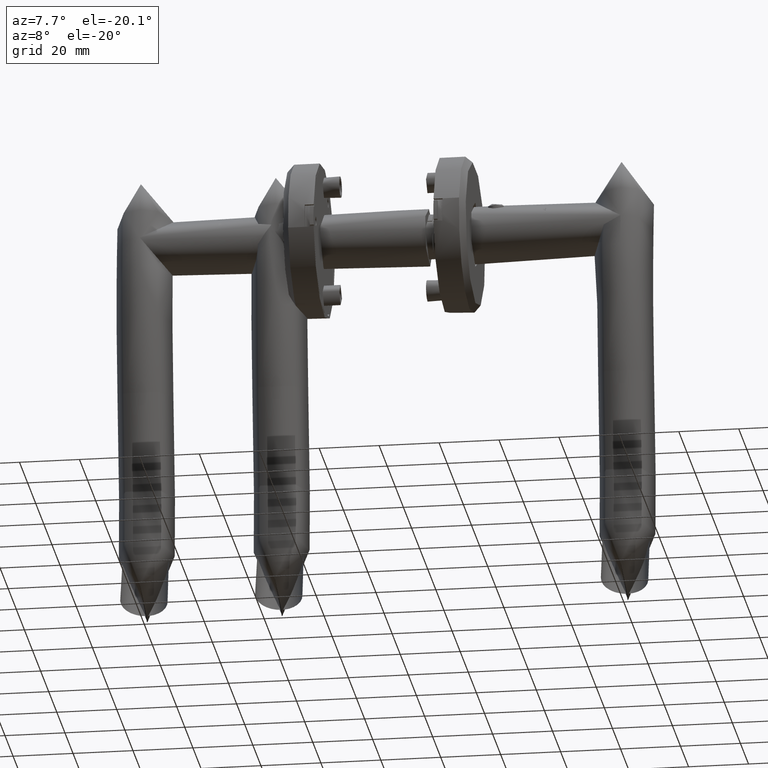
[diagram: clean part render]
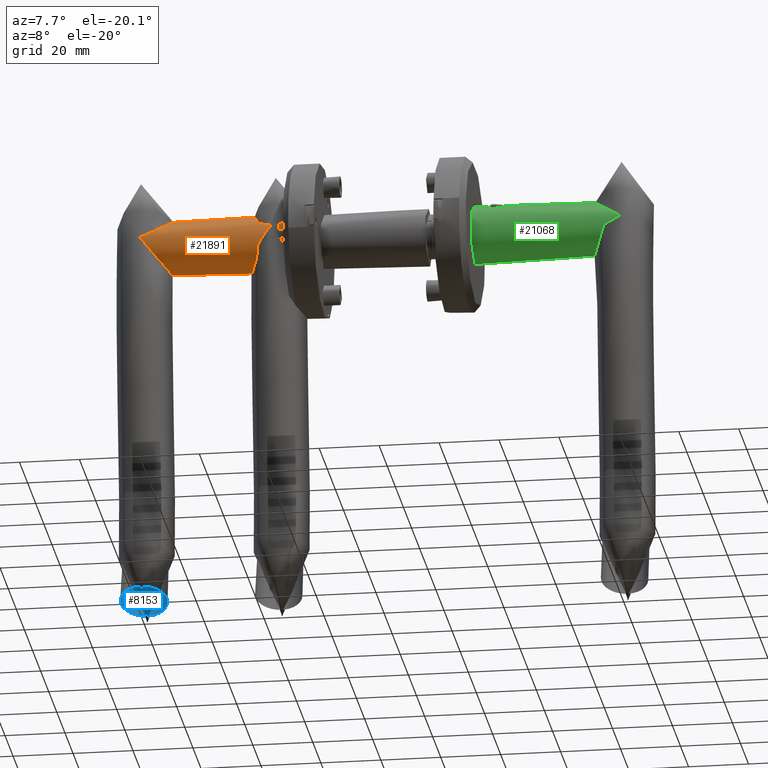
[diagram: same view with three faces highlighted in distinct colors, each labeled with its STEP entity id]
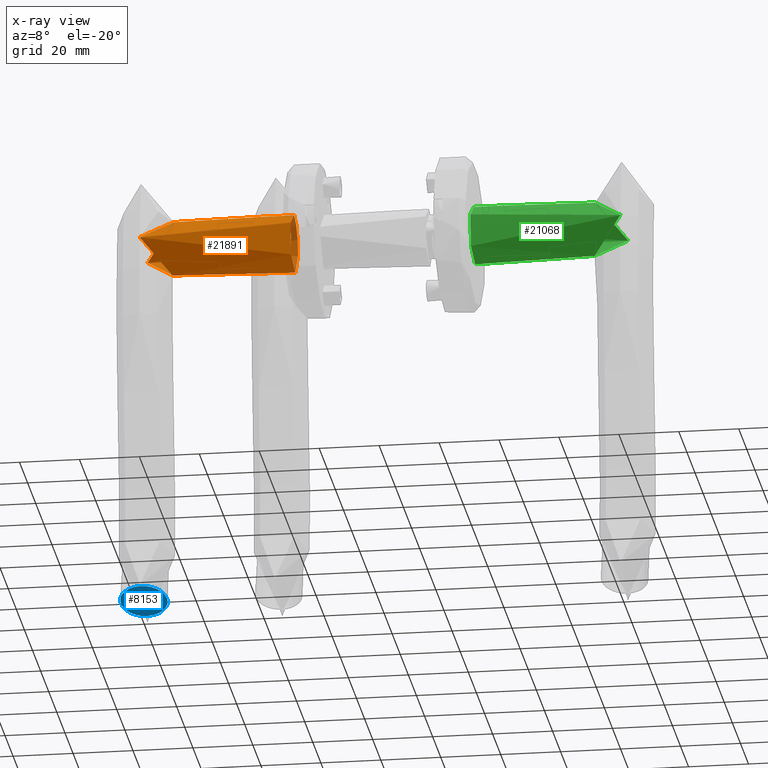
[diagram: x-ray of the same camera — body ghosted, the three highlighted faces saturated]
A machine part, auxiliary view with three faces highlighted in distinct colors.
The next image is the same camera in x-ray (body ghosted, the three faces saturated) — at least one of them is partly hidden behind the body in this view.
Their STEP definitions:

[orange] entity #21891 — the highlighted cylindrical surface (bore or boss wall) has radius 9.8 mm, axis along (1, -0, -0).
#91 = CARTESIAN_POINT ( 'NONE',  ( 0.003939981011227597400, 0.2710321771112003700, 40.43849661807721700 ) ) ;
#119 = CARTESIAN_POINT ( 'NONE',  ( -1.617368114437134400E-007, -0.001780461037002490800, 4.731141725421216500 ) ) ;
#226 = CARTESIAN_POINT ( 'NONE',  ( -14.46359547617767300, 8.637483721530847100, 46.33597306813479100 ) ) ;
#264 = CARTESIAN_POINT ( 'NONE',  ( -6.897812140205509200E-005, -0.3805590716564425400, 4.731358774623254600 ) ) ;
#505 = CARTESIAN_POINT ( 'NONE',  ( -19.60040654923693600, -0.1744445830852342500, 40.41452319263799400 ) ) ;
#596 = B_SPLINE_CURVE_WITH_KNOTS ( 'NONE', 3,
 ( #31035, #24472, #1859, #18039, #30627, #30760, #15091, #21101, #11723, #5122, #17907, #30896, #34119, #14559, #27550, #21507, #11864, #1993, #34252, #11594, #33984, #5263, #37340, #18170, #37482, #40138, #40671, #24203, #36945, #2282, #24739, #11335, #11469, #35577, #33610, #4899, #24641, #1434, #37934, #17628, #17070, #26964, #16427, #19532, #6358, #38680, #16030, #32256, #119, #264, #38421, #25814, #41378, #22201, #38550, #16176, #19263, #9601, #41525, #31999, #3515, #41658, #22468, #6629, #6079, #31864, #19402, #12524, #22736, #15764, #28501, #35066, #12950, #2974, #38280, #3250, #28639, #3105, #25679, #15902, #12810, #35345, #22595, #3377, #12662, #9330, #29051, #19121 ),
 .UNSPECIFIED., .T., .F.,
 ( 4, 3, 3, 3, 3, 3, 3, 3, 3, 3, 3, 3, 3, 3, 3, 3, 3, 3, 3, 3, 3, 3, 3, 3, 3, 3, 3, 3, 3, 4 ),
 ( 0.0000000000000000000, 0.03448275862068965500, 0.06896551724137930900, 0.1034482758620689600, 0.1379310344827586200, 0.1724137931034482900, 0.2068965517241379300, 0.2413793103448276000, 0.2758620689655172400, 0.3103448275862069100, 0.3448275862068965700, 0.3793103448275861900, 0.4137931034482758600, 0.4482758620689655200, 0.4827586206896551900, 0.5172413793103448600, 0.5517241379310344800, 0.5862068965517240900, 0.6206896551724138100, 0.6551724137931034300, 0.6896551724137931500, 0.7241379310344827600, 0.7586206896551723800, 0.7931034482758621000, 0.8275862068965517100, 0.8620689655172413300, 0.8965517241379310500, 0.9310344827586206600, 0.9655172413793103900, 1.000000000000000000 ),
 .UNSPECIFIED. ) ;
#622 = CARTESIAN_POINT ( 'NONE',  ( 1.734723475976807100E-015, 1.200153863164405600E-015, 10.26885880047777100 ) ) ;
#794 = CARTESIAN_POINT ( 'NONE',  ( -0.8770654420899368600, -4.066936604295853500, 41.83370123779440800 ) ) ;
#1068 = CARTESIAN_POINT ( 'NONE',  ( -8.750129910019977000, -9.743846408220115100, 50.13256692713659400 ) ) ;
#1434 = CARTESIAN_POINT ( 'NONE',  ( -0.1196767919207069600, 1.528931158230164100, 5.149005723561701100 ) ) ;
#1859 = CARTESIAN_POINT ( 'NONE',  ( -0.005687839129654957000, 0.3820111784199193300, 10.25051546661124700 ) ) ;
#1993 = CARTESIAN_POINT ( 'NONE',  ( -0.3496586795409334900, 2.595515547792915700, 8.728946815938071400 ) ) ;
#2147 = DIRECTION ( 'NONE',  ( 1.972152263052526900E-031, 3.889170968374258800E-034, 1.000000000000000000 ) ) ;
#2282 = CARTESIAN_POINT ( 'NONE',  ( -0.3906389789736953200, 2.740375265106216300, 6.605224161148235000 ) ) ;
#2514 = CARTESIAN_POINT ( 'NONE',  ( -8.887595518348124600, -9.757678622053447300, 50.13253868357897100 ) ) ;
#2656 = CARTESIAN_POINT ( 'NONE',  ( -15.63315377116685000, -7.881004370855897000, 43.72451535855967100 ) ) ;
#2974 = CARTESIAN_POINT ( 'NONE',  ( -0.4070522529736656000, -2.795362649473179600, 8.221942249555903400 ) ) ;
#3078 = CARTESIAN_POINT ( 'NONE',  ( -6.981974205617418300, 9.390431377133820600, 46.36827942118522800 ) ) ;
#3105 = CARTESIAN_POINT ( 'NONE',  ( -0.2716078295454158500, -2.307259130240838700, 9.204518789773162600 ) ) ;
#3218 = CARTESIAN_POINT ( 'NONE',  ( -8.065908994393556200, 9.661441216882014500, 47.44126124070686500 ) ) ;
#3250 = CARTESIAN_POINT ( 'NONE',  ( -0.3697869579638371500, -2.666661204917323100, 8.564758903595299300 ) ) ;
#3348 = CARTESIAN_POINT ( 'NONE',  ( -18.81430076159410800, 3.861443999490028500, 41.51591128650460400 ) ) ;
#3354 = CARTESIAN_POINT ( 'NONE',  ( -0.03287847892083567400, -0.8872922901271832500, 40.61808110777848000 ) ) ;
#3377 = CARTESIAN_POINT ( 'NONE',  ( -0.08287199686703580800, -1.283955025719179200, 9.986999347365573600 ) ) ;
#3480 = CARTESIAN_POINT ( 'NONE',  ( -18.35053891930188600, 4.800909079189900700, 42.05919177361805300 ) ) ;
#3515 = CARTESIAN_POINT ( 'NONE',  ( -0.3701412483092855200, -2.667913777310295700, 6.438127643400187900 ) ) ;
#3622 = CARTESIAN_POINT ( 'NONE',  ( -10.84823272582777600, 9.744011164854985200, 50.13086513213414700 ) ) ;
#3631 = CARTESIAN_POINT ( 'NONE',  ( -0.3378688433032261400, 2.580359292329569100, 40.49050392256174300 ) ) ;
#3766 = CARTESIAN_POINT ( 'NONE',  ( -19.45008360577861200, 1.749665987756708000, 40.71175749698203800 ) ) ;
#3774 = CARTESIAN_POINT ( 'NONE',  ( -8.540575620485219200, -9.718989461199621300, 49.92656147905342600 ) ) ;
#3907 = CARTESIAN_POINT ( 'NONE',  ( -3.602315216270592500, -7.614187279570454200, 44.90400642496852200 ) ) ;
#4045 = CARTESIAN_POINT ( 'NONE',  ( -8.471185304003070000, -9.709744981693425800, 49.85824578861949900 ) ) ;
#4322 = FACE_OUTER_BOUND ( 'NONE', #5864, .T. ) ;
#4899 = CARTESIAN_POINT ( 'NONE',  ( -0.1586894398083998100, 1.763599240156407600, 5.299602542095819000 ) ) ;
#5122 = CARTESIAN_POINT ( 'NONE',  ( -0.1328079027327934400, 1.607916961330563700, 9.800305463808470600 ) ) ;
#5216 = ORIENTED_EDGE ( 'NONE', *, *, #14170, .T. ) ;
#5263 = CARTESIAN_POINT ( 'NONE',  ( -0.4354464388560269600, 2.888795008384254600, 7.500179302032352200 ) ) ;
#5770 = CARTESIAN_POINT ( 'NONE',  ( -12.42826732350748000, -9.445277816446394000, 46.71811580347319600 ) ) ;
#5864 = EDGE_LOOP ( 'NONE', ( #19114, #5216 ) ) ;
#5914 = CARTESIAN_POINT ( 'NONE',  ( -18.93449609592968500, -3.569987768326030200, 40.81829364762175100 ) ) ;
#6040 = CARTESIAN_POINT ( 'NONE',  ( -16.61481542424693800, -7.050376245932454800, 42.83067999288551400 ) ) ;
#6079 = CARTESIAN_POINT ( 'NONE',  ( -0.4239977293207165000, -2.851483284773361300, 7.047203057589157100 ) ) ;
#6185 = CARTESIAN_POINT ( 'NONE',  ( -11.59908623459867300, -9.650260998292411700, 47.50679703102279900 ) ) ;
#6325 = CARTESIAN_POINT ( 'NONE',  ( -11.45794066649784100, 9.659704093133399300, 49.50017176917456400 ) ) ;
#6333 = CARTESIAN_POINT ( 'NONE',  ( -0.7078676284221553400, 3.676910704049910300, 40.72269182935055900 ) ) ;
#6358 = CARTESIAN_POINT ( 'NONE',  ( -0.02720517741864077500, 0.7534884233588047300, 4.820716758195205300 ) ) ;
#6459 = CARTESIAN_POINT ( 'NONE',  ( -10.78115167682853800, 9.750761067068380000, 50.20000000000005300 ) ) ;
#6590 = CARTESIAN_POINT ( 'NONE',  ( -19.57236581195228800, -0.7606787115703218500, 40.39809434189681500 ) ) ;
#6629 = CARTESIAN_POINT ( 'NONE',  ( -0.4183960665732899800, -2.832932691807648100, 6.958114948402204900 ) ) ;
#6742 = CARTESIAN_POINT ( 'NONE',  ( -1.365809117790796700, 5.003408993382646700, 41.21608856717421800 ) ) ;
#6878 = CARTESIAN_POINT ( 'NONE',  ( -14.95615871285670200, 8.354104872386322700, 45.80799762448909700 ) ) ;
#6885 = CARTESIAN_POINT ( 'NONE',  ( -10.50932588373473000, 9.774533726116450400, 49.92022160000949100 ) ) ;
#7308 = CARTESIAN_POINT ( 'NONE',  ( -8.679623662950060500, -9.735998293857903700, 50.06330580346376300 ) ) ;
#7445 = CARTESIAN_POINT ( 'NONE',  ( -5.834826274274005800, -8.966588457138192000, 47.22120783465318500 ) ) ;
#7583 = CARTESIAN_POINT ( 'NONE',  ( -0.4881121991982463300, -3.074995326637811400, 41.33309563450130500 ) ) ;
#8176 = CARTESIAN_POINT ( 'NONE',  ( -8.818848323171442500, -9.750761067068374600, 50.20000000000005300 ) ) ;
#8396 = EDGE_CURVE ( 'NONE', #29700, #29700, #16166, .T. ) ;
#8628 = CARTESIAN_POINT ( 'NONE',  ( -10.78115167682853800, 9.750761067068380000, 50.20000000000005300 ) ) ;
#9017 = CARTESIAN_POINT ( 'NONE',  ( -13.53081543896502500, -9.066914877889797000, 45.67728920245185300 ) ) ;
#9148 = CARTESIAN_POINT ( 'NONE',  ( -19.45508213700259500, -1.722993967992790600, 40.44210275531227700 ) ) ;
#9330 = CARTESIAN_POINT ( 'NONE',  ( -0.02300272790866360300, -0.7581509683960964100, 10.19646775247137400 ) ) ;
#9432 = CARTESIAN_POINT ( 'NONE',  ( -19.28944007282995100, -2.477871342538815000, 40.54950431540304800 ) ) ;
#9562 = CARTESIAN_POINT ( 'NONE',  ( -15.90204479649047900, 7.674279694840721300, 44.78451622042371100 ) ) ;
#9571 = CARTESIAN_POINT ( 'NONE',  ( -7.252903480286046400, 9.467308425313341000, 46.63530598957805800 ) ) ;
#9601 = CARTESIAN_POINT ( 'NONE',  ( -0.2154620635836934600, -2.043681126153661200, 5.543074919613018500 ) ) ;
#9710 = CARTESIAN_POINT ( 'NONE',  ( -17.63713876241773800, 5.920753984737225500, 42.87238864416624300 ) ) ;
#9718 = CARTESIAN_POINT ( 'NONE',  ( -10.71409871224505000, 9.757508143341189200, 50.13089407640334400 ) ) ;
#9845 = CARTESIAN_POINT ( 'NONE',  ( -16.35884151676106800, 7.287737474074685200, 44.28620010502704200 ) ) ;
#9994 = CARTESIAN_POINT ( 'NONE',  ( -0.005340164053816524700, -0.5053081143250561800, 40.54374387028992300 ) ) ;
#10129 = CARTESIAN_POINT ( 'NONE',  ( -4.838302710255711700, 8.473450516611297400, 44.29678438966992400 ) ) ;
#10821 = CARTESIAN_POINT ( 'NONE',  ( -5.058184410655996100, -8.595605264095171400, 46.42719150283922900 ) ) ;
#11335 = CARTESIAN_POINT ( 'NONE',  ( -0.3288181050020654300, 2.521832504811483600, 6.101262376907842000 ) ) ;
#11469 = CARTESIAN_POINT ( 'NONE',  ( -0.2719463490837708600, 2.308787249372525900, 5.797056132452365100 ) ) ;
#11594 = CARTESIAN_POINT ( 'NONE',  ( -0.4110574812960955400, 2.812537379043496900, 8.228122392532276000 ) ) ;
#11723 = CARTESIAN_POINT ( 'NONE',  ( -0.1067272390795779700, 1.451113599202203500, 9.900995771897465000 ) ) ;
#11864 = CARTESIAN_POINT ( 'NONE',  ( -0.3252775338832930600, 2.506290682298520700, 8.888870862167607400 ) ) ;
#12219 = CARTESIAN_POINT ( 'NONE',  ( -15.88346130698378600, -7.689919755506981100, 43.49527833209286600 ) ) ;
#12271 = DIRECTION ( 'NONE',  ( 1.000000000000000000, 0.0000000000000000000, 1.848892746611746600E-031 ) ) ;
#12491 = CARTESIAN_POINT ( 'NONE',  ( -19.18307453643757700, -2.853374114309052100, 40.62657390618717600 ) ) ;
#12524 = CARTESIAN_POINT ( 'NONE',  ( -0.4340130416390279300, -2.884161104360448900, 7.318411786602178300 ) ) ;
#12625 = CARTESIAN_POINT ( 'NONE',  ( -13.25533667706692500, -9.175265824967116400, 45.93634715065549300 ) ) ;
#12662 = CARTESIAN_POINT ( 'NONE',  ( -0.06291557388091173500, -1.108687006611484900, 10.05682214906750700 ) ) ;
#12810 = CARTESIAN_POINT ( 'NONE',  ( -0.1583580359705326900, -1.761791155629437000, 9.701725541129295700 ) ) ;
#12950 = CARTESIAN_POINT ( 'NONE',  ( -0.4183204291709260400, -2.832682197191993500, 8.043086749109443500 ) ) ;
#13047 = CARTESIAN_POINT ( 'NONE',  ( -12.12738238625204600, 9.523585229207064600, 48.80344538462354400 ) ) ;
#13056 = CARTESIAN_POINT ( 'NONE',  ( -2.384100189178330400, 6.440720921956164500, 42.06158807770413700 ) ) ;
#13183 = DIRECTION ( 'NONE',  ( -1.000000000000000000, 0.0000000000000000000, 0.0000000000000000000 ) ) ;
#13341 = CARTESIAN_POINT ( 'NONE',  ( -10.10152906238318100, 9.796302465062584700, 49.50195322481177800 ) ) ;
#13394 = EDGE_LOOP ( 'NONE', ( #40160 ) ) ;
#13483 = CARTESIAN_POINT ( 'NONE',  ( -2.277872032952966900, -6.312778592837117800, 43.46647646055353000 ) ) ;
#13757 = CARTESIAN_POINT ( 'NONE',  ( -0.3805385717793164900, -2.729507206215795000, 41.18560233328555100 ) ) ;
#14170 = EDGE_CURVE ( 'NONE', #22714, #39541, #23283, .T. ) ;
#14559 = CARTESIAN_POINT ( 'NONE',  ( -0.2438665581174955000, 2.176849510962129300, 9.329083526198759900 ) ) ;
#15091 = CARTESIAN_POINT ( 'NONE',  ( -0.06313773203987446700, 1.110636382788913900, 10.05604479312928300 ) ) ;
#15326 = CARTESIAN_POINT ( 'NONE',  ( -9.097514050449939700, -9.775039783509983600, 49.92691211887115100 ) ) ;
#15470 = CARTESIAN_POINT ( 'NONE',  ( -16.37440298952761700, -7.274654125867133600, 43.04825085411009400 ) ) ;
#15764 = CARTESIAN_POINT ( 'NONE',  ( -0.4354462700851997600, -2.888794461282917100, 7.501713492238860000 ) ) ;
#15902 = CARTESIAN_POINT ( 'NONE',  ( -0.1867671034181226700, -1.908973228751786200, 9.585925994989811000 ) ) ;
#16030 = CARTESIAN_POINT ( 'NONE',  ( -0.005513396427664056300, 0.3785440804593349600, 4.748903933067049700 ) ) ;
#16142 = CARTESIAN_POINT ( 'NONE',  ( -11.86073096395628600, 9.584779057249756200, 49.08163418561522900 ) ) ;
#16166 = CIRCLE ( 'NONE', #38246, 9.799999999999998900 ) ;
#16176 = CARTESIAN_POINT ( 'NONE',  ( -0.1590607074081907000, -1.765585746208686400, 5.301093781256586400 ) ) ;
#16279 = CARTESIAN_POINT ( 'NONE',  ( -11.12039660129101100, 9.710881351917125300, 49.84978358320336200 ) ) ;
#16411 = EDGE_LOOP ( 'NONE', ( #34813 ) ) ;
#16427 = CARTESIAN_POINT ( 'NONE',  ( -0.06283003490976067600, 1.107935499451393000, 4.942878598907379100 ) ) ;
#16562 = CARTESIAN_POINT ( 'NONE',  ( -12.92173237505586800, 9.305714617253061100, 47.97153941725683500 ) ) ;
#16573 = CARTESIAN_POINT ( 'NONE',  ( -10.64531852604046400, 9.763712888131069100, 50.06008156666843700 ) ) ;
#16718 = CARTESIAN_POINT ( 'NONE',  ( -8.125438050756168100, -9.656883583677913700, 49.51716904174340100 ) ) ;
#16991 = CARTESIAN_POINT ( 'NONE',  ( -4.559211837365996400, -8.301884366891579600, 45.91049624265654900 ) ) ;
#17070 = CARTESIAN_POINT ( 'NONE',  ( -0.08378542986458936700, 1.281533704978541600, 5.016836817288103500 ) ) ;
#17628 = CARTESIAN_POINT ( 'NONE',  ( -0.09556908775646549800, 1.365291422917515500, 5.059892389442334900 ) ) ;
#17907 = CARTESIAN_POINT ( 'NONE',  ( -0.1588885663860089000, 1.764720323458924200, 9.699615155719477900 ) ) ;
#18039 = CARTESIAN_POINT ( 'NONE',  ( -0.01643922643483272700, 0.5673963252938699600, 10.21492501809458600 ) ) ;
#18170 = CARTESIAN_POINT ( 'NONE',  ( -0.4340157285619865000, 2.884169698778236100, 7.318730521170611100 ) ) ;
#19088 = CARTESIAN_POINT ( 'NONE',  ( -11.04470702277935400, -9.736578829071881100, 48.03798000607855600 ) ) ;
#19114 = ORIENTED_EDGE ( 'NONE', *, *, #21090, .T. ) ;
#19121 = CARTESIAN_POINT ( 'NONE',  ( 1.734723475976807100E-015, 1.200153863164405600E-015, 10.26885880047777100 ) ) ;
#19224 = CARTESIAN_POINT ( 'NONE',  ( -19.07220508877104900, 3.192895358987178700, 41.20341055389689400 ) ) ;
#19234 = CARTESIAN_POINT ( 'NONE',  ( -3.084460778553934200, 7.145008534976483400, 42.68210824362574800 ) ) ;
#19263 = CARTESIAN_POINT ( 'NONE',  ( -0.1869176557382662700, -1.909812414266136300, 5.414643319666385700 ) ) ;
#19372 = CARTESIAN_POINT ( 'NONE',  ( -3.822092476344092700, 7.772197550461513100, 43.35162309113285800 ) ) ;
#19402 = CARTESIAN_POINT ( 'NONE',  ( -0.4311242595999003600, -2.874746486377982800, 7.227262906925642700 ) ) ;
#19502 = CARTESIAN_POINT ( 'NONE',  ( -18.17973878339828500, 5.092052224231932400, 42.25545421881982800 ) ) ;
#19509 = CARTESIAN_POINT ( 'NONE',  ( -9.422424345884080000, 9.796500578202003600, 48.80931891200809500 ) ) ;
#19532 = CARTESIAN_POINT ( 'NONE',  ( -0.04295689141207745300, 0.9332789638738364600, 4.873354249472364500 ) ) ;
#19627 = CARTESIAN_POINT ( 'NONE',  ( -9.799999999999993600, -2.311115933264683000E-030, 50.20000000000005300 ) ) ;
#19702 = AXIS2_PLACEMENT_3D ( 'NONE', #19627, #23119, #13183 ) ;
#19778 = CARTESIAN_POINT ( 'NONE',  ( -3.327717268254359400, 7.365594976994665400, 42.90097498391688900 ) ) ;
#20327 = CARTESIAN_POINT ( 'NONE',  ( -0.7358922864374268800, -3.742833422756127500, 41.65656791852517700 ) ) ;
#21090 = EDGE_CURVE ( 'NONE', #39541, #22714, #29155, .T. ) ;
#21101 = CARTESIAN_POINT ( 'NONE',  ( -0.08304751354218524500, 1.285183879410969800, 9.986366251840260900 ) ) ;
#21507 = CARTESIAN_POINT ( 'NONE',  ( -0.2986007168962589400, 2.400710657916894000, 9.040065071125257000 ) ) ;
#21891 = ADVANCED_FACE ( 'NONE', ( #37941, #4322, #37432 ), #28429, .T. ) ;
#22026 = CARTESIAN_POINT ( 'NONE',  ( -8.958102105242282700, -9.764020545519180400, 50.06342446111818100 ) ) ;
#22201 = CARTESIAN_POINT ( 'NONE',  ( -0.1071180369502164200, -1.453630875098665300, 5.100469196099347800 ) ) ;
#22307 = CARTESIAN_POINT ( 'NONE',  ( -1.950744654241691500, 5.911674896972678900, 41.69064932271212600 ) ) ;
#22438 = CARTESIAN_POINT ( 'NONE',  ( -16.58307214251819800, 7.080007088925949400, 44.04035523062496100 ) ) ;
#22443 = CARTESIAN_POINT ( 'NONE',  ( -0.09891409049182146900, 1.442549621057044500, 40.39480958583175200 ) ) ;
#22468 = CARTESIAN_POINT ( 'NONE',  ( -0.4071927410784368900, -2.795831505876220600, 6.779938730028300500 ) ) ;
#22562 = CARTESIAN_POINT ( 'NONE',  ( -19.60192454410138300, 0.02348972607558309100, 40.42801447100388400 ) ) ;
#22595 = CARTESIAN_POINT ( 'NONE',  ( -0.1063847172770723400, -1.448789352924918500, 9.902254952866760700 ) ) ;
#22714 = VERTEX_POINT ( 'NONE', #8628 ) ;
#22736 = CARTESIAN_POINT ( 'NONE',  ( -0.4354606581764632300, -2.888841102902981900, 7.410828847100982700 ) ) ;
#22985 = CARTESIAN_POINT ( 'NONE',  ( -19.58880334273469300, 0.6102747407668696100, 40.48569725387713400 ) ) ;
#23119 = DIRECTION ( 'NONE',  ( -1.224646799147353500E-016, -8.352770121188736300E-034, -1.000000000000000000 ) ) ;
#23283 = B_SPLINE_CURVE_WITH_KNOTS ( 'NONE', 3,
 ( #38391, #9718, #16573, #6885, #28749, #13341, #38649, #19509, #35593, #3218, #9571, #3078, #29027, #26067, #38940, #10129, #25652, #19372, #19778, #19234, #13056, #22307, #6742, #25519, #38794, #6333, #29151, #3631, #41630, #22443, #35317, #91, #9994, #3354, #36005, #26491, #13757, #7583, #20327, #794, #32638, #23414, #29990, #13483, #29843, #3907, #16991, #10821, #7445, #35870, #32779, #39347, #32925, #26355, #16718, #39063, #4045, #3774, #7308, #1068, #36142 ),
 .UNSPECIFIED., .F., .F.,
 ( 4, 2, 1, 2, 2, 2, 2, 2, 2, 2, 2, 2, 2, 2, 2, 2, 2, 2, 2, 2, 2, 2, 2, 2, 2, 2, 2, 2, 2, 2, 4 ),
 ( -1.979899227334081100E-005, 0.0002697787099651158600, 0.0005593564122035726000, 0.001138511816680500400, 0.002296822625634356800, 0.004613444243542073200, 0.005771755052495931200, 0.006930065861449790000, 0.009246687479357494600, 0.01040499828831134200, 0.01156330909726518800, 0.01387993071517288100, 0.01503824152412673100, 0.01619655233308057600, 0.01735486314203442400, 0.01851317395098827200, 0.01967148475994211900, 0.02082979556889596700, 0.02198810637784981100, 0.02314641718680365800, 0.02430472799575750600, 0.02546303880471135700, 0.02777966042261904900, 0.03009628204052674400, 0.03241290365843443900, 0.03357121446738827600, 0.03472952527634211300, 0.03588783608529595700, 0.03646699148977287200, 0.03675656919201133300, 0.03704614689424979400 ),
 .UNSPECIFIED. ) ;
#23414 = CARTESIAN_POINT ( 'NONE',  ( -1.350843507458541000, -4.975998675339219800, 42.40522559821632600 ) ) ;
#24203 = CARTESIAN_POINT ( 'NONE',  ( -0.4182749411672410700, 2.832531539183551900, 6.956191829310231600 ) ) ;
#24472 = CARTESIAN_POINT ( 'NONE',  ( 1.711297334326909700E-015, 0.1912892882332820900, 10.26885912550788600 ) ) ;
#24519 = EDGE_CURVE ( 'NONE', #29178, #29178, #596, .T. ) ;
#24641 = CARTESIAN_POINT ( 'NONE',  ( -0.1326810078832712500, 1.607153852205578600, 5.199204663073073700 ) ) ;
#24739 = CARTESIAN_POINT ( 'NONE',  ( -0.3700320209831520200, 2.667527678341305100, 6.437236899734770600 ) ) ;
#24976 = CARTESIAN_POINT ( 'NONE',  ( -9.306582892054960300, -9.789312447703769800, 49.72240862092879600 ) ) ;
#25104 = CARTESIAN_POINT ( 'NONE',  ( -17.30495411124250500, -6.336696433568119100, 42.21059699699836200 ) ) ;
#25513 = CARTESIAN_POINT ( 'NONE',  ( -9.515500659120958100, -9.796858842082812700, 49.51869023826012800 ) ) ;
#25519 = CARTESIAN_POINT ( 'NONE',  ( -1.184172876111428700, 4.684468030650776900, 41.07368002647174200 ) ) ;
#25652 = CARTESIAN_POINT ( 'NONE',  ( -4.073405309276693300, 7.958678543659664800, 43.58353818036727000 ) ) ;
#25679 = CARTESIAN_POINT ( 'NONE',  ( -0.2150473454605537100, -2.041735195914803600, 9.458790259917593700 ) ) ;
#25777 = CARTESIAN_POINT ( 'NONE',  ( -11.32320770502801300, 9.681864156772366700, 49.63989365649592100 ) ) ;
#25814 = CARTESIAN_POINT ( 'NONE',  ( -0.06310637153082374100, -1.110361413178788400, 4.943845459730373400 ) ) ;
#26067 = CARTESIAN_POINT ( 'NONE',  ( -6.168333216819882600, 9.106957558256267400, 45.57331220558735700 ) ) ;
#26355 = CARTESIAN_POINT ( 'NONE',  ( -7.713119444693528900, -9.579309089393483100, 49.10893260444137100 ) ) ;
#26491 = CARTESIAN_POINT ( 'NONE',  ( -0.2017842117140148900, -2.012639279160289600, 40.92258249850721100 ) ) ;
#26964 = CARTESIAN_POINT ( 'NONE',  ( -0.07276660665860228100, 1.195263767240171400, 4.977640773624886900 ) ) ;
#27550 = CARTESIAN_POINT ( 'NONE',  ( -0.2719238999092248300, 2.295130633535267700, 9.191259280082906700 ) ) ;
#28184 = CARTESIAN_POINT ( 'NONE',  ( -12.70426136182712500, -9.364300318384255900, 46.45657831840185300 ) ) ;
#28429 = CYLINDRICAL_SURFACE ( 'NONE', #19702, 9.799999999999998900 ) ;
#28468 = CARTESIAN_POINT ( 'NONE',  ( -10.21125631262052700, -9.795327149317245100, 48.84270483719750900 ) ) ;
#28501 = CARTESIAN_POINT ( 'NONE',  ( -0.4354174939026728700, -2.888701178042787400, 7.683482782514615500 ) ) ;
#28602 = CARTESIAN_POINT ( 'NONE',  ( -18.47416030253958400, -4.575325320419470800, 41.19626981487202500 ) ) ;
#28639 = CARTESIAN_POINT ( 'NONE',  ( -0.3288964127000877400, -2.522058451282507300, 8.897482933735235000 ) ) ;
#28749 = CARTESIAN_POINT ( 'NONE',  ( -10.30537434972623400, 9.788618540897108000, 49.71069382279346600 ) ) ;
#29020 = CARTESIAN_POINT ( 'NONE',  ( -19.37456575136864600, 2.123037369339987500, 40.81626804128792700 ) ) ;
#29027 = CARTESIAN_POINT ( 'NONE',  ( -6.440210824275971500, 9.210498766144677800, 45.83778407005116400 ) ) ;
#29051 = CARTESIAN_POINT ( 'NONE',  ( 1.781215053811263000E-015, -0.3796331878166687700, 10.26885815542220600 ) ) ;
#29151 = CARTESIAN_POINT ( 'NONE',  ( -0.4487529370178329200, 2.956471165920274500, 40.55400409517238100 ) ) ;
#29155 = B_SPLINE_CURVE_WITH_KNOTS ( 'NONE', 3,
 ( #41340, #2514, #22026, #15326, #24976, #25513, #34483, #28468, #19088, #6185, #5770, #28184, #12625, #9017, #35032, #31410, #2656, #12219, #15470, #6040, #25104, #31686, #37836, #28602, #41054, #5914, #12491, #9432, #9148, #31549, #6590, #38383, #505, #22562, #22985, #38784, #3766, #29020, #38642, #19224, #3348, #38516, #3480, #19502, #9710, #41620, #22438, #9845, #9562, #32222, #6878, #226, #32093, #16562, #13047, #16142, #6325, #25777, #16279, #35454, #38933, #3622, #6459 ),
 .UNSPECIFIED., .F., .F.,
 ( 4, 2, 1, 2, 2, 2, 2, 2, 2, 2, 2, 2, 2, 2, 2, 2, 2, 2, 2, 2, 2, 2, 2, 2, 2, 2, 2, 2, 2, 2, 2, 4 ),
 ( -2.027826707009291000E-005, 0.0002694207216723819300, 0.0005591197104148567800, 0.001138517687899820800, 0.002297313642869752700, 0.004614905552809596600, 0.005773701507779526800, 0.006932497462749457800, 0.009250089372689304300, 0.01040888532765921900, 0.01156768128262913000, 0.01388527319256895900, 0.01504406914753887900, 0.01620286510250879700, 0.01736166105747871700, 0.01852045701244863600, 0.01909985498993359300, 0.01967925296741855300, 0.02083804892238847300, 0.02199684487735838900, 0.02315564083232830200, 0.02431443678729821800, 0.02547323274226813400, 0.02779082465220796300, 0.02894962060717788700, 0.03010841656214781300, 0.03242600847208766000, 0.03474360038202750600, 0.03590239633699743300, 0.03648179431448238900, 0.03677149330322487100, 0.03706119229196736000 ),
 .UNSPECIFIED. ) ;
#29178 = VERTEX_POINT ( 'NONE', #622 ) ;
#29700 = VERTEX_POINT ( 'NONE', #41594 ) ;
#29843 = CARTESIAN_POINT ( 'NONE',  ( -3.144218692833303100, -7.220398735941393500, 44.41406965345218100 ) ) ;
#29990 = CARTESIAN_POINT ( 'NONE',  ( -1.881425352976889800, -5.811317283478424600, 43.02171932004218700 ) ) ;
#30627 = CARTESIAN_POINT ( 'NONE',  ( -0.02719061374001049600, 0.7527814721678205400, 10.17933456957792500 ) ) ;
#30760 = CARTESIAN_POINT ( 'NONE',  ( -0.04322795053756368200, 0.9360888861668574800, 10.12572333441830500 ) ) ;
#30896 = CARTESIAN_POINT ( 'NONE',  ( -0.1873347015520776500, 1.911812232531306500, 9.583519484632184100 ) ) ;
#30911 = CARTESIAN_POINT ( 'NONE',  ( -9.799999999999998900, -3.851859888774471700E-031, 0.0000000000000000000 ) ) ;
#31035 = CARTESIAN_POINT ( 'NONE',  ( 1.734723475976807100E-015, 1.200153863164405600E-015, 10.26885880047777100 ) ) ;
#31410 = CARTESIAN_POINT ( 'NONE',  ( -14.86927786340670800, -8.409879499118051900, 44.42759415970171200 ) ) ;
#31549 = CARTESIAN_POINT ( 'NONE',  ( -19.51560705958867100, -1.340910930327776400, 40.41074279346617700 ) ) ;
#31686 = CARTESIAN_POINT ( 'NONE',  ( -17.72911590430347000, -5.803429343303825800, 41.83552937871950700 ) ) ;
#31864 = CARTESIAN_POINT ( 'NONE',  ( -0.4282354775607727900, -2.865331868395516700, 7.136114027249107900 ) ) ;
#31999 = CARTESIAN_POINT ( 'NONE',  ( -0.3288534424449626700, -2.521980208999736700, 6.101314800225415200 ) ) ;
#32093 = CARTESIAN_POINT ( 'NONE',  ( -13.44658655059043500, 9.113597222512529700, 47.41756045176482100 ) ) ;
#32222 = CARTESIAN_POINT ( 'NONE',  ( -15.66886123754738800, 7.853707913919572000, 45.03766718075793600 ) ) ;
#32256 = CARTESIAN_POINT ( 'NONE',  ( 3.424645548386197600E-005, 0.1876088442727175100, 4.731033200820197800 ) ) ;
#32638 = CARTESIAN_POINT ( 'NONE',  ( -1.184743794750635800, -4.683598508200660100, 42.20823474367893600 ) ) ;
#32779 = CARTESIAN_POINT ( 'NONE',  ( -6.631038728587279600, -9.277841778562484300, 48.02717589811494000 ) ) ;
#32925 = CARTESIAN_POINT ( 'NONE',  ( -7.440390569529336400, -9.515834418269417200, 48.83764630206755400 ) ) ;
#33610 = CARTESIAN_POINT ( 'NONE',  ( -0.1867406781653627700, 1.908879630977370100, 5.413928711921189000 ) ) ;
#33984 = CARTESIAN_POINT ( 'NONE',  ( -0.4354170493484947900, 2.888699736959103000, 7.863310219945199200 ) ) ;
#34119 = CARTESIAN_POINT ( 'NONE',  ( -0.2156006298347865600, 2.044330871746717900, 9.456301505415471100 ) ) ;
#34252 = CARTESIAN_POINT ( 'NONE',  ( -0.3701249467926541700, 2.667856158209776000, 8.562005341469474100 ) ) ;
#34483 = CARTESIAN_POINT ( 'NONE',  ( -9.933123786171620400, -9.803051068120700200, 49.11227937087794300 ) ) ;
#34813 = ORIENTED_EDGE ( 'NONE', *, *, #8396, .T. ) ;
#35032 = CARTESIAN_POINT ( 'NONE',  ( -14.34286558021188500, -8.703682513178140600, 44.91666299725849900 ) ) ;
#35066 = CARTESIAN_POINT ( 'NONE',  ( -0.4295886053681864900, -2.870001744910807500, 7.864231248662985500 ) ) ;
#35317 = CARTESIAN_POINT ( 'NONE',  ( -0.01497381710598808500, 0.6672929139055716600, 40.40799774066886100 ) ) ;
#35345 = CARTESIAN_POINT ( 'NONE',  ( -0.1323713766238024900, -1.605290254277177900, 9.801990246998027300 ) ) ;
#35454 = CARTESIAN_POINT ( 'NONE',  ( -11.05267424826316300, 9.719849691261604400, 49.91979809168747600 ) ) ;
#35577 = CARTESIAN_POINT ( 'NONE',  ( -0.2151425684714988200, 2.042182170442421900, 5.541637852098247700 ) ) ;
#35593 = CARTESIAN_POINT ( 'NONE',  ( -8.608199331678200400, 9.742461648893504700, 47.98503234901387800 ) ) ;
#35870 = CARTESIAN_POINT ( 'NONE',  ( -6.099047245899091000, -9.078745085069087400, 47.48967592933591000 ) ) ;
#36005 = CARTESIAN_POINT ( 'NONE',  ( -0.1307141320830980400, -1.639774746771454300, 40.80697728036409400 ) ) ;
#36142 = CARTESIAN_POINT ( 'NONE',  ( -8.818848323171442500, -9.750761067068374600, 50.20000000000005300 ) ) ;
#36945 = CARTESIAN_POINT ( 'NONE',  ( -0.4070641552471009900, 2.795399909847306600, 6.778494892300645200 ) ) ;
#37340 = CARTESIAN_POINT ( 'NONE',  ( -0.4354537862329099800, 2.888818826240542800, 7.409396572554140200 ) ) ;
#37432 = FACE_OUTER_BOUND ( 'NONE', #16411, .T. ) ;
#37482 = CARTESIAN_POINT ( 'NONE',  ( -0.4311381815473979700, 2.874791857985730600, 7.227702611852195400 ) ) ;
#37836 = CARTESIAN_POINT ( 'NONE',  ( -18.29762710991621000, -4.894691133510558100, 41.34582834160449500 ) ) ;
#37934 = CARTESIAN_POINT ( 'NONE',  ( -0.1073527456483416300, 1.449049140856489400, 5.102947961596566300 ) ) ;
#37941 = FACE_BOUND ( 'NONE', #13394, .T. ) ;
#38246 = AXIS2_PLACEMENT_3D ( 'NONE', #30911, #2147, #12271 ) ;
#38280 = CARTESIAN_POINT ( 'NONE',  ( -0.3902322305957118800, -2.738962581734730900, 8.398396888525331500 ) ) ;
#38383 = CARTESIAN_POINT ( 'NONE',  ( -19.58559924404195100, -0.5660802751373881200, 40.39962517792096700 ) ) ;
#38391 = CARTESIAN_POINT ( 'NONE',  ( -10.78115167682853800, 9.750761067068380000, 50.20000000000005300 ) ) ;
#38421 = CARTESIAN_POINT ( 'NONE',  ( -0.02333172574559400400, -0.7615727300309318400, 4.804661567440106800 ) ) ;
#38516 = CARTESIAN_POINT ( 'NONE',  ( -18.66872528151773400, 4.184035812240671800, 41.68837817478864600 ) ) ;
#38550 = CARTESIAN_POINT ( 'NONE',  ( -0.1330893721792035500, -1.609608310653675800, 5.200781488677966600 ) ) ;
#38642 = CARTESIAN_POINT ( 'NONE',  ( -19.18512488966723600, 2.845879091641824800, 41.06269556927363600 ) ) ;
#38649 = CARTESIAN_POINT ( 'NONE',  ( -9.693965110206347500, 9.803193543532547200, 49.08552853855946600 ) ) ;
#38680 = CARTESIAN_POINT ( 'NONE',  ( -0.01635928692315241600, 0.5660162519090697900, 4.784810345631127500 ) ) ;
#38784 = CARTESIAN_POINT ( 'NONE',  ( -19.55687169048619700, 0.9944342525368781200, 40.54689338331741800 ) ) ;
#38794 = CARTESIAN_POINT ( 'NONE',  ( -0.8556810057988349900, 4.021924351463543000, 40.82737455114963900 ) ) ;
#38933 = CARTESIAN_POINT ( 'NONE',  ( -10.91699050627320300, 9.736375249643760600, 50.05992855177839100 ) ) ;
#38940 = CARTESIAN_POINT ( 'NONE',  ( -5.362739603939009400, 8.757479006271578800, 44.79546316370772300 ) ) ;
#39063 = CARTESIAN_POINT ( 'NONE',  ( -8.263415855201087000, -9.679798220480883200, 49.65346597770959400 ) ) ;
#39347 = CARTESIAN_POINT ( 'NONE',  ( -6.899350438750959200, -9.365099757242989000, 48.29676797993454300 ) ) ;
#39541 = VERTEX_POINT ( 'NONE', #8176 ) ;
#40138 = CARTESIAN_POINT ( 'NONE',  ( -0.4282606345328093800, 2.865414017193225000, 7.136674702533780700 ) ) ;
#40160 = ORIENTED_EDGE ( 'NONE', *, *, #24519, .T. ) ;
#40671 = CARTESIAN_POINT ( 'NONE',  ( -0.4238803341273111900, 2.851097353851674800, 7.045040297815024400 ) ) ;
#41054 = CARTESIAN_POINT ( 'NONE',  ( -18.79203437115816300, -3.913818673589163100, 40.93298932059877900 ) ) ;
#41340 = CARTESIAN_POINT ( 'NONE',  ( -8.818848323171442500, -9.750761067068374600, 50.20000000000005300 ) ) ;
#41378 = CARTESIAN_POINT ( 'NONE',  ( -0.08299369442343859600, -1.284755754752716900, 5.013437405875506200 ) ) ;
#41525 = CARTESIAN_POINT ( 'NONE',  ( -0.2725508792745478500, -2.311418549928711200, 5.799938119506284000 ) ) ;
#41594 = CARTESIAN_POINT ( 'NONE',  ( 0.0000000000000000000, -3.851859888774471700E-031, 1.811914891679511500E-030 ) ) ;
#41620 = CARTESIAN_POINT ( 'NONE',  ( -17.23546753403243800, 6.414054476674056800, 43.32092219073730600 ) ) ;
#41630 = CARTESIAN_POINT ( 'NONE',  ( -0.1636583601528253700, 1.825130106099521300, 40.41139842623709200 ) ) ;
#41658 = CARTESIAN_POINT ( 'NONE',  ( -0.3907851512414469200, -2.740880561465574700, 6.606534064987575200 ) ) ;

[blue] entity #8153 — the highlighted planar face has unit normal (-0, 0.3292, 0.9443).
#143 = CARTESIAN_POINT ( 'NONE',  ( -134.7281083296637100, 5.144024028588320100, 56.42763683574058600 ) ) ;
#291 = CARTESIAN_POINT ( 'NONE',  ( -131.8597920106536200, -3.084134147643045900, 43.39749975378536100 ) ) ;
#427 = CARTESIAN_POINT ( 'NONE',  ( -135.2075677418985700, 6.519419014421920600, 54.98782927645438400 ) ) ;
#568 = CARTESIAN_POINT ( 'NONE',  ( -130.8297539757896000, -6.038939314083290100, 46.71875004871044000 ) ) ;
#1273 = CARTESIAN_POINT ( 'NONE',  ( -130.9141310874391600, -5.796892013893565100, 54.13328278388405600 ) ) ;
#3272 = CARTESIAN_POINT ( 'NONE',  ( -130.7324446489828600, -6.318084444514305200, 47.43177062864820900 ) ) ;
#3402 = CARTESIAN_POINT ( 'NONE',  ( -134.4486899924810400, 4.342474262113529300, 57.01057590594737700 ) ) ;
#3542 = CARTESIAN_POINT ( 'NONE',  ( -132.1613616367290300, -2.219040375366006000, 42.93659272286135600 ) ) ;
#3582 = DIRECTION ( 'NONE',  ( 0.9442705194819734900, 0.3291704513428323500, 1.479114197289397100E-031 ) ) ;
#3685 = CARTESIAN_POINT ( 'NONE',  ( -134.2953910522795700, 3.902715257896883600, 43.15467783422061400 ) ) ;
#3826 = CARTESIAN_POINT ( 'NONE',  ( -130.6543572544705100, -6.542088829721065800, 48.17009494383096100 ) ) ;
#4383 = CARTESIAN_POINT ( 'NONE',  ( -132.4864452857192400, -1.286493408119515800, 57.78927219320320300 ) ) ;
#5765 = CARTESIAN_POINT ( 'NONE',  ( -130.9091498132594900, -5.811181481062341400, 46.26785361796701300 ) ) ;
#6516 = CARTESIAN_POINT ( 'NONE',  ( -135.5445139562998500, 7.485995375125915200, 53.20447379339722700 ) ) ;
#6655 = CARTESIAN_POINT ( 'NONE',  ( -134.2179322435419200, 3.680514057069926200, 43.04357601197162400 ) ) ;
#6791 = CARTESIAN_POINT ( 'NONE',  ( -135.6711480006021000, 7.849262473705147500, 51.97769657227106400 ) ) ;
#6935 = CARTESIAN_POINT ( 'NONE',  ( -131.7863834838981600, -3.294716559919200100, 43.53110799565278900 ) ) ;
#7077 = CARTESIAN_POINT ( 'NONE',  ( -135.6503712656069600, 7.789661564003330000, 52.23012853759134100 ) ) ;
#7639 = CARTESIAN_POINT ( 'NONE',  ( -133.3254142203033700, 1.120203877305892400, 58.04947542988842500 ) ) ;
#8153 = ADVANCED_FACE ( 'NONE', ( #38670 ), #25882, .T. ) ;
#9627 = CARTESIAN_POINT ( 'NONE',  ( -132.9824886073369600, 0.1364747929411245200, 42.35027665391480400 ) ) ;
#9769 = CARTESIAN_POINT ( 'NONE',  ( -134.8594927199781100, 5.520918145262017500, 56.09951847329210800 ) ) ;
#9912 = CARTESIAN_POINT ( 'NONE',  ( -135.7198349343837000, 7.988927610920311100, 49.16460210676448400 ) ) ;
#10046 = CARTESIAN_POINT ( 'NONE',  ( -131.0967261199624800, -5.273093156759425200, 45.41452212447691700 ) ) ;
#10183 = CARTESIAN_POINT ( 'NONE',  ( -132.4817310488377900, -1.300016842226950000, 42.61457577318844900 ) ) ;
#10313 = CARTESIAN_POINT ( 'NONE',  ( -131.2070181422930900, -4.956705386241421400, 55.39338236190882000 ) ) ;
#10451 = CARTESIAN_POINT ( 'NONE',  ( -133.4931564514887400, 1.601395439714772300, 57.99827448152891700 ) ) ;
#10592 = CARTESIAN_POINT ( 'NONE',  ( -130.9582740344511100, -5.670261925025288400, 54.35643195396630000 ) ) ;
#10876 = CARTESIAN_POINT ( 'NONE',  ( -131.0999747667741800, -5.263773968478956200, 54.99857454680575600 ) ) ;
#11520 = ORIENTED_EDGE ( 'NONE', *, *, #38729, .T. ) ;
#12833 = CARTESIAN_POINT ( 'NONE',  ( -135.2067506202616300, 6.517074989101961300, 45.40954336395525800 ) ) ;
#12971 = CARTESIAN_POINT ( 'NONE',  ( -134.9220549811223600, 5.700386559239451100, 55.92680991337647400 ) ) ;
#13057 = EDGE_LOOP ( 'NONE', ( #11520 ) ) ;
#13108 = CARTESIAN_POINT ( 'NONE',  ( -135.7206215482052300, 7.991184120393717700, 51.21874914206060200 ) ) ;
#13250 = CARTESIAN_POINT ( 'NONE',  ( -134.8581866463637200, 5.517171494232971300, 44.27993738216837000 ) ) ;
#13401 = CARTESIAN_POINT ( 'NONE',  ( -134.0659709635619100, 3.244592314390579700, 57.54771368964259200 ) ) ;
#13670 = CARTESIAN_POINT ( 'NONE',  ( -130.5846518727726700, -6.742048263254392100, 51.23194075540734400 ) ) ;
#13858 = AXIS2_PLACEMENT_3D ( 'NONE', #25605, #3582, #16093 ) ;
#13947 = CARTESIAN_POINT ( 'NONE',  ( -131.5790148248372900, -3.889581957517459300, 56.44875454294057700 ) ) ;
#16054 = CARTESIAN_POINT ( 'NONE',  ( -135.0995482782427400, 6.209550389688836000, 45.01222802417501600 ) ) ;
#16093 = DIRECTION ( 'NONE',  ( -0.3291704513428323500, 0.9442705194819734900, -4.005934284325451100E-032 ) ) ;
#16199 = CARTESIAN_POINT ( 'NONE',  ( -135.3493120376064100, 6.926031938503125900, 54.34274437880381500 ) ) ;
#16347 = CARTESIAN_POINT ( 'NONE',  ( -135.4726370495042100, 7.279806624459556700, 53.66725574988005600 ) ) ;
#16482 = CARTESIAN_POINT ( 'NONE',  ( -135.3906449281983300, 7.044600995694440600, 46.26674029520846400 ) ) ;
#16622 = CARTESIAN_POINT ( 'NONE',  ( -130.7035631329424100, -6.400935028592479100, 47.67689341390406800 ) ) ;
#17040 = CARTESIAN_POINT ( 'NONE',  ( -132.8159661333141300, -0.3412177290014962200, 57.99997370052735600 ) ) ;
#19286 = CARTESIAN_POINT ( 'NONE',  ( -135.5073864294973600, 7.379489979887906300, 46.95601587149305800 ) ) ;
#19431 = CARTESIAN_POINT ( 'NONE',  ( -135.7367974492386200, 8.037586907793485800, 49.68488627099496600 ) ) ;
#19694 = CARTESIAN_POINT ( 'NONE',  ( -135.4706896086233600, 7.274220123591236500, 46.72068651085980000 ) ) ;
#19829 = CARTESIAN_POINT ( 'NONE',  ( -134.4451331618440700, 4.332271006324579500, 43.39767039365188600 ) ) ;
#20242 = CARTESIAN_POINT ( 'NONE',  ( -131.8598690020876300, -3.083913287170581000, 57.01707486431409700 ) ) ;
#22489 = CARTESIAN_POINT ( 'NONE',  ( -130.5846499460877200, -6.742053790214006500, 49.17134954757090500 ) ) ;
#22622 = CARTESIAN_POINT ( 'NONE',  ( -132.5646399605883200, -1.062181274517449500, 42.55134067107768200 ) ) ;
#22764 = CARTESIAN_POINT ( 'NONE',  ( -132.0089938169318200, -2.656128333186679800, 43.15535121492958800 ) ) ;
#22911 = CARTESIAN_POINT ( 'NONE',  ( -131.2059006051791800, -4.959911194499303700, 45.01051988386660700 ) ) ;
#23048 = CARTESIAN_POINT ( 'NONE',  ( -135.3471915335926500, 6.919948982337253100, 46.04707403068414400 ) ) ;
#23615 = CARTESIAN_POINT ( 'NONE',  ( -132.5682770285349900, -1.051747847016891100, 57.85114125681585100 ) ) ;
#23662 = CARTESIAN_POINT ( 'NONE',  ( -130.5678921987417000, -6.790125683445166900, 50.20000000000008100 ) ) ;
#25605 = CARTESIAN_POINT ( 'NONE',  ( -133.1586724870100200, 0.6418823801183839400, 50.20000000000008100 ) ) ;
#25704 = CARTESIAN_POINT ( 'NONE',  ( -133.9832673694544400, 3.007345728457949000, 42.74894349893766300 ) ) ;
#25840 = CARTESIAN_POINT ( 'NONE',  ( -133.9854123770445800, 3.013498976488814500, 57.63555745402844400 ) ) ;
#25882 = PLANE ( 'NONE',  #13858 ) ;
#25984 = CARTESIAN_POINT ( 'NONE',  ( -133.8221733505886800, 2.545225473559373300, 42.60082502556631600 ) ) ;
#26118 = CARTESIAN_POINT ( 'NONE',  ( -135.6536695666100600, 7.799123192132230800, 48.15888283767974100 ) ) ;
#26268 = CARTESIAN_POINT ( 'NONE',  ( -135.7369166774362800, 8.037928930206710700, 50.70956492901064600 ) ) ;
#26826 = CARTESIAN_POINT ( 'NONE',  ( -132.3242726420908500, -1.751707845867232400, 57.64054389816455200 ) ) ;
#26980 = CARTESIAN_POINT ( 'NONE',  ( -132.0084000097264700, -2.657831750476799600, 57.25790246562780800 ) ) ;
#28952 = CARTESIAN_POINT ( 'NONE',  ( -135.3931169578990500, 7.051692351434707200, 54.12019920474828200 ) ) ;
#29077 = CARTESIAN_POINT ( 'NONE',  ( -134.7276335429856100, 5.142662037980244300, 43.95562775770303400 ) ) ;
#29210 = CARTESIAN_POINT ( 'NONE',  ( -135.6012839060834900, 7.648847750709667700, 52.72224577815002500 ) ) ;
#29344 = CARTESIAN_POINT ( 'NONE',  ( -132.3199659435762200, -1.764062200357684500, 42.76390848884798900 ) ) ;
#29481 = CARTESIAN_POINT ( 'NONE',  ( -131.4458388744710400, -4.271615409553875900, 56.11753109565324100 ) ) ;
#29759 = CARTESIAN_POINT ( 'NONE',  ( -130.7980336100155200, -6.129933527401643500, 53.44824095684320800 ) ) ;
#30040 = CARTESIAN_POINT ( 'NONE',  ( -132.9846120664381900, 0.1425662261801063100, 58.05051662795934700 ) ) ;
#32020 = CARTESIAN_POINT ( 'NONE',  ( -133.3195564041984100, 1.103399929582821800, 42.34972562012659100 ) ) ;
#32148 = CARTESIAN_POINT ( 'NONE',  ( -131.4443744541838400, -4.275816299699619600, 44.28640116164741200 ) ) ;
#32283 = CARTESIAN_POINT ( 'NONE',  ( -130.5678921987417000, -6.790125683445167800, 50.20000000000009500 ) ) ;
#32421 = CARTESIAN_POINT ( 'NONE',  ( -133.4907364133029800, 1.594453228755288200, 42.40064776654623600 ) ) ;
#32554 = CARTESIAN_POINT ( 'NONE',  ( -134.3003188576998900, 3.916851342606563400, 57.25195031708859300 ) ) ;
#32665 = VERTEX_POINT ( 'NONE', #23662 ) ;
#32835 = CARTESIAN_POINT ( 'NONE',  ( -130.8341442096854300, -6.026345326911451700, 53.67972251214547400 ) ) ;
#32976 = CARTESIAN_POINT ( 'NONE',  ( -130.5678921987416700, -6.790125683445162400, 50.71866041522920200 ) ) ;
#35233 = CARTESIAN_POINT ( 'NONE',  ( -132.8148174018289500, -0.3445130225853653700, 42.40013833349478000 ) ) ;
#35366 = CARTESIAN_POINT ( 'NONE',  ( -130.6338945204919600, -6.600788984504392300, 48.41883783111904900 ) ) ;
#35511 = CARTESIAN_POINT ( 'NONE',  ( -134.5175527842066600, 4.540016610919178000, 43.52955508470960700 ) ) ;
#35644 = CARTESIAN_POINT ( 'NONE',  ( -133.8228586394058900, 2.547191318381302900, 57.78565645455528700 ) ) ;
#35779 = CARTESIAN_POINT ( 'NONE',  ( -130.5678921987417300, -6.790125683445174000, 49.68133958477096700 ) ) ;
#35925 = CARTESIAN_POINT ( 'NONE',  ( -133.7409180797791400, 2.312133601354474900, 57.84805532174088700 ) ) ;
#36194 = CARTESIAN_POINT ( 'NONE',  ( -130.5678921987417000, -6.790125683445167800, 50.20000000000009500 ) ) ;
#36340 = CARTESIAN_POINT ( 'NONE',  ( -130.6515597527071600, -6.550113846646124400, 52.24778384678531000 ) ) ;
#38445 = CARTESIAN_POINT ( 'NONE',  ( -135.6047669639256100, 7.658839379133700800, 47.66953039076040000 ) ) ;
#38572 = CARTESIAN_POINT ( 'NONE',  ( -134.6594806817043400, 4.947156221878774600, 56.58235761894604100 ) ) ;
#38670 = FACE_OUTER_BOUND ( 'NONE', #13057, .T. ) ;
#38709 = CARTESIAN_POINT ( 'NONE',  ( -135.1006130466079800, 6.212604823564141100, 55.38345758726262600 ) ) ;
#38729 = EDGE_CURVE ( 'NONE', #32665, #32665, #39616, .T. ) ;
#38842 = CARTESIAN_POINT ( 'NONE',  ( -131.5744931653174800, -3.902552957090140500, 43.96147327960678600 ) ) ;
#39406 = CARTESIAN_POINT ( 'NONE',  ( -132.2435457054753600, -1.983284119081200700, 57.55311140101370900 ) ) ;
#39616 = B_SPLINE_CURVE_WITH_KNOTS ( 'NONE', 3,
 ( #32283, #35779, #22489, #35366, #3826, #16622, #3272, #568, #5765, #10046, #22911, #32148, #38842, #6935, #291, #22764, #3542, #29344, #10183, #22622, #35233, #9627, #32020, #32421, #25984, #25704, #6655, #3685, #19829, #35511, #29077, #13250, #16054, #12833, #23048, #16482, #19694, #19286, #38445, #26118, #9912, #19431, #26268, #13108, #6791, #7077, #29210, #6516, #16347, #28952, #16199, #427, #38709, #12971, #9769, #143, #38572, #3402, #32554, #13401, #25840, #35644, #35925, #10451, #7639, #30040, #17040, #23615, #4383, #26826, #39406, #26980, #20242, #13947, #29481, #10313, #10876, #10592, #1273, #32835, #29759, #39679, #36340, #13670, #32976, #36194 ),
 .UNSPECIFIED., .T., .F.,
 ( 4, 2, 2, 2, 2, 2, 2, 2, 1, 2, 2, 2, 2, 2, 2, 2, 2, 2, 2, 2, 2, 2, 2, 2, 1, 2, 2, 2, 2, 2, 2, 2, 2, 2, 2, 2, 2, 2, 2, 2, 2, 2, 2, 4 ),
 ( 0.0000000000000000000, 0.001533894265538020400, 0.002300841398307020700, 0.003067788531076020500, 0.004601682796614020600, 0.006135577062152021100, 0.007669471327690019800, 0.008436418460459015800, 0.009203365593228008200, 0.009970312725997002400, 0.01073725985876599500, 0.01227115412430398100, 0.01380504838984196600, 0.01533894265537994900, 0.01610588978814893300, 0.01687283692091791400, 0.01840673118645586000, 0.01994062545199380700, 0.02070757258476279800, 0.02147451971753178800, 0.02300841398306978000, 0.02454230824860777200, 0.02607620251414576700, 0.02684314964691475500, 0.02761009677968374200, 0.02837704391245273300, 0.02914399104522172000, 0.03067788531075972500, 0.03144483244352875400, 0.03221177957629776900, 0.03374567384183583400, 0.03451262097460484200, 0.03527956810737385700, 0.03681346237291186600, 0.03834735663844986800, 0.03911430377121887700, 0.03988125090398787800, 0.04141514516952586600, 0.04294903943506385400, 0.04448293370060184300, 0.04524988083337084400, 0.04601682796613985200, 0.04755072223167784700, 0.04908461649721584900 ),
 .UNSPECIFIED. ) ;
#39679 = CARTESIAN_POINT ( 'NONE',  ( -130.7011348179055700, -6.407900982832593700, 52.73995297733178200 ) ) ;

[green] entity #21068 — the highlighted cylindrical surface (bore or boss wall) has radius 9.8 mm, axis along (-1, 0, -0).
#192 = VERTEX_POINT ( 'NONE', #20095 ) ;
#247 = CARTESIAN_POINT ( 'NONE',  ( -3.144218692833308900, -7.220398735941397000, -59.41406965345212400 ) ) ;
#292 = CARTESIAN_POINT ( 'NONE',  ( -19.58880334273470000, 0.6102747407668862600, -55.48569725387711300 ) ) ;
#521 = CARTESIAN_POINT ( 'NONE',  ( -4.559211837366012400, -8.301884366891586700, -60.91049624265647100 ) ) ;
#540 = B_SPLINE_CURVE_WITH_KNOTS ( 'NONE', 3,
 ( #21095, #1855, #14553, #1986, #36940, #11464, #4541, #27005, #24336, #27276, #18033, #7961, #8094, #14817, #30489, #33848, #20832, #17768, #20972, #30756, #5117, #17901, #37204, #40131, #21240, #7816, #17622, #1437, #1722, #27134, #36796, #24199, #24064, #11331, #4982, #27415, #40002, #37070, #40268, #14262, #30205, #33427, #23923, #36649, #33708, #27545, #1578, #11588, #11186, #11047, #30344, #17491, #39857, #4694, #33569, #34521, #14958, #5529, #9049, #37337, #8631, #2552, #15370, #21637, #37872, #18308, #15221, #27950, #40665, #8776, #21921, #37478, #27674, #12259, #8918, #24468, #5670, #31160, #5258, #8494, #24874, #11859, #31303, #18166, #15085, #2419, #5398, #21502, #28079, #34248, #11992, #30892, #34383, #25007, #37602, #18446, #40809, #12119, #2277, #18714, #40529, #24736, #37742, #18576, #34113, #11719, #21371, #40956, #34648, #21784, #2130, #24599, #28224, #15503, #31450, #27807, #5807, #41089, #31031, #22198, #9326, #31588, #15761, #9596, #12394, #22059, #38419, #31996, #34788, #35207, #15626, #9463, #41522, #18852, #15900, #3102, #2971, #25417, #6218, #25543, #6357, #31860, #18989, #2690, #5948, #12659, #28636, #38010, #34931, #22331, #12806, #41374, #38141, #35063, #9186, #28360, #16027, #38278, #19117, #41233, #25137, #28776, #19260, #2836, #25279, #6077, #28498, #31725, #12522, #36123, #23818, #25584, #32568, #23340, #34376, #23717, #37975, #13187, #29281, #17511, #13995, #33298, #8520, #40425, #17933, #34001, #31191, #12016, #40557, #5554, #27973, #8803, #21401, #8947, #2162, #37501, #11491, #33873, #34412, #34135, #24907, #15111, #8389, #21666, #18334, #14843, #11748, #18195, #21123, #28103, #37229, #24763, #40839, #24625, #5699, #14707, #24496, #27566, #5427, #18059, #21265, #2015, #37094, #37627, #5147, #2445, #1880, #11892, #15249, #5284, #40694, #18474, #27837, #8661, #31055, #40296, #24364, #27699, #30784, #11613 ),
 .UNSPECIFIED., .T., .F.,
 ( 4, 2, 2, 2, 2, 2, 2, 2, 2, 2, 2, 2, 2, 2, 2, 2, 2, 2, 2, 2, 2, 2, 2, 2, 2, 2, 2, 2, 2, 2, 2, 2, 2, 2, 2, 2, 2, 2, 2, 2, 2, 2, 2, 2, 2, 2, 2, 2, 2, 2, 2, 2, 2, 2, 2, 2, 2, 2, 2, 2, 2, 2, 2, 2, 2, 2, 2, 2, 2, 2, 2, 2, 2, 2, 2, 2, 2, 2, 2, 2, 2, 2, 2, 2, 2, 2, 2, 2, 2, 2, 2, 2, 2, 2, 2, 2, 2, 2, 2, 2, 2, 2, 2, 2, 2, 2, 2, 2, 2, 2, 2, 2, 2, 2, 2, 2, 2, 2, 2, 4 ),
 ( 0.0000000000000000000, 0.007812500000000001700, 0.01562500000000000300, 0.02343750000000000300, 0.03125000000000000700, 0.03906250000000000700, 0.04687500000000000700, 0.05468750000000001400, 0.06250000000000000000, 0.07031249999999998600, 0.07812499999999998600, 0.09375000000000000000, 0.1015625000000000000, 0.1093750000000000000, 0.1132812500000000000, 0.1171875000000000000, 0.1250000000000000000, 0.1406249999999999700, 0.1484374999999999700, 0.1562499999999999700, 0.1640624999999999700, 0.1718749999999999700, 0.1796874999999999700, 0.1875000000000000000, 0.2031250000000000000, 0.2187500000000000000, 0.2343750000000000000, 0.2500000000000000000, 0.2656249999999999400, 0.2695312499999999400, 0.2734374999999999400, 0.2812499999999999400, 0.2890624999999999400, 0.2968749999999999400, 0.3046874999999999400, 0.3124999999999999400, 0.3203124999999999400, 0.3242187499999999400, 0.3281249999999999400, 0.3437499999999999400, 0.3593749999999999400, 0.3750000000000000000, 0.3906250000000000000, 0.4062500000000000000, 0.4140625000000000000, 0.4218750000000000000, 0.4257812499999999400, 0.4296875000000000000, 0.4375000000000000000, 0.4453125000000000000, 0.4531250000000000000, 0.4609375000000000000, 0.4687500000000000000, 0.4765625000000000000, 0.4804687500000000600, 0.4843750000000000000, 0.4921875000000000000, 0.5000000000000000000, 0.5156249999999998900, 0.5234374999999998900, 0.5312499999999998900, 0.5390624999999998900, 0.5468749999999998900, 0.5624999999999998900, 0.5703124999999998900, 0.5781249999999998900, 0.5859374999999998900, 0.5937499999999998900, 0.6015624999999998900, 0.6093749999999998900, 0.6171874999999998900, 0.6249999999999998900, 0.6328124999999998900, 0.6367187499999998900, 0.6406249999999998900, 0.6562499999999998900, 0.6718749999999998900, 0.6796874999999998900, 0.6874999999999998900, 0.6914062500000000000, 0.6953124999999998900, 0.7031249999999998900, 0.7187499999999998900, 0.7265625000000000000, 0.7343750000000000000, 0.7382812500000000000, 0.7421875000000000000, 0.7460937499999998900, 0.7500000000000000000, 0.7656250000000000000, 0.7812500000000000000, 0.7890625000000000000, 0.7929687499999998900, 0.7968750000000000000, 0.8046875000000000000, 0.8125000000000000000, 0.8281250000000000000, 0.8359375000000000000, 0.8437500000000000000, 0.8476562500000000000, 0.8515625000000000000, 0.8593750000000000000, 0.8671875000000001100, 0.8750000000000000000, 0.8828124999999998900, 0.8906250000000000000, 0.8984375000000001100, 0.9023437499999998900, 0.9062500000000000000, 0.9140624999999998900, 0.9218750000000000000, 0.9375000000000000000, 0.9453124999999998900, 0.9531250000000000000, 0.9570312500000000000, 0.9609375000000001100, 0.9687500000000000000, 0.9843750000000000000, 0.9921875000000001100, 1.000000000000000000 ),
 .UNSPECIFIED. ) ;
#569 = CARTESIAN_POINT ( 'NONE',  ( -11.04470702277937200, -9.736578829071879300, -63.03798000607850600 ) ) ;
#669 = CARTESIAN_POINT ( 'NONE',  ( -4.838302710255731200, 8.473450516611309900, -59.29678438966991600 ) ) ;
#711 = CARTESIAN_POINT ( 'NONE',  ( -18.93449609592969600, -3.569987768326018200, -55.81829364762170800 ) ) ;
#846 = CARTESIAN_POINT ( 'NONE',  ( -19.45508213700259500, -1.722993967992778400, -55.44210275531226300 ) ) ;
#1332 = EDGE_CURVE ( 'NONE', #20010, #192, #17198, .T. ) ;
#1369 = CARTESIAN_POINT ( 'NONE',  ( -8.818848323171447800, -9.750761067068369300, -65.20000000000000300 ) ) ;
#1437 = CARTESIAN_POINT ( 'NONE',  ( -0.1767977157336231600, 1.853193410633274800, -24.62415196753644200 ) ) ;
#1500 = CARTESIAN_POINT ( 'NONE',  ( -14.46359547617766100, 8.637483721530856000, -61.33597306813474100 ) ) ;
#1578 = CARTESIAN_POINT ( 'NONE',  ( -0.3650250204869631100, 2.649829716062915600, -23.60360717021568900 ) ) ;
#1722 = CARTESIAN_POINT ( 'NONE',  ( -0.1803096597936645600, 1.871333955100663100, -24.60948993948924400 ) ) ;
#1788 = CARTESIAN_POINT ( 'NONE',  ( -13.44658655059042500, 9.113597222512538600, -62.41756045176479300 ) ) ;
#1855 = CARTESIAN_POINT ( 'NONE',  ( 2.603086824729562700E-008, 0.04764617174082313300, -25.26885888143599600 ) ) ;
#1880 = CARTESIAN_POINT ( 'NONE',  ( -0.04009477861208048800, -0.8867683558325153400, -25.13557615598551100 ) ) ;
#1986 = CARTESIAN_POINT ( 'NONE',  ( -0.001750873325245657000, 0.1913410074799540600, -25.26316122205357200 ) ) ;
#2015 = CARTESIAN_POINT ( 'NONE',  ( -0.08367092846495895200, -1.280598945320496500, -24.98356358967283000 ) ) ;
#2057 = CARTESIAN_POINT ( 'NONE',  ( -16.58307214251818000, 7.080007088925968100, -59.04035523062493200 ) ) ;
#2130 = CARTESIAN_POINT ( 'NONE',  ( -0.004763445294008098100, 0.3064428216725013100, -19.74666883420801300 ) ) ;
#2162 = CARTESIAN_POINT ( 'NONE',  ( -0.3242255245917256600, -2.500065757845678400, -23.88799071726569400 ) ) ;
#2277 = CARTESIAN_POINT ( 'NONE',  ( -0.05313283894181471100, 1.020086492973860200, -19.90911929579583300 ) ) ;
#2419 = CARTESIAN_POINT ( 'NONE',  ( -0.1590978592768136900, 1.760242406133310000, -20.30269441829410200 ) ) ;
#2445 = CARTESIAN_POINT ( 'NONE',  ( -0.04430556071785749000, -0.9318989886700794800, -25.12122512673941800 ) ) ;
#2552 = CARTESIAN_POINT ( 'NONE',  ( -0.4235846255206457400, 2.850068308523747300, -22.04582271910019700 ) ) ;
#2690 = CARTESIAN_POINT ( 'NONE',  ( -0.2225533073475249600, -2.076937936258313600, -20.57498205291435100 ) ) ;
#2836 = CARTESIAN_POINT ( 'NONE',  ( -0.4059409346716397700, -2.791500434442415900, -21.78172192824407800 ) ) ;
#2938 = DIRECTION ( 'NONE',  ( -1.000000000000000000, 1.665334536937821300E-016, 0.0000000000000000000 ) ) ;
#2971 = CARTESIAN_POINT ( 'NONE',  ( -0.1462317541927747000, -1.687074313210805500, -20.25193158634492400 ) ) ;
#3102 = CARTESIAN_POINT ( 'NONE',  ( -0.1396006422099454500, -1.648713413082151900, -20.22593168908559100 ) ) ;
#3346 = FACE_OUTER_BOUND ( 'NONE', #10782, .T. ) ;
#3363 = CARTESIAN_POINT ( 'NONE',  ( -3.327717268254374500, 7.365594976994679600, -57.90097498391685300 ) ) ;
#3543 = CARTESIAN_POINT ( 'NONE',  ( -15.88346130698378600, -7.689919755506972300, -58.49527833209280900 ) ) ;
#3625 = VERTEX_POINT ( 'NONE', #22535 ) ;
#3639 = CARTESIAN_POINT ( 'NONE',  ( -0.7078676284221641100, 3.676910704049938200, -55.72269182935051600 ) ) ;
#3686 = CARTESIAN_POINT ( 'NONE',  ( -19.58559924404195500, -0.5660802751373715800, -55.39962517792093900 ) ) ;
#3785 = CARTESIAN_POINT ( 'NONE',  ( -4.073405309276709300, 7.958678543659674500, -58.58353818036724200 ) ) ;
#3915 = CARTESIAN_POINT ( 'NONE',  ( -1.184172876111442100, 4.684468030650805300, -56.07368002647169200 ) ) ;
#3960 = CARTESIAN_POINT ( 'NONE',  ( -9.306582892054885600, -9.789312447703762700, -64.72240862092866100 ) ) ;
#4054 = CARTESIAN_POINT ( 'NONE',  ( -8.750129910019984100, -9.743846408220107900, -65.13256692713652300 ) ) ;
#4104 = CARTESIAN_POINT ( 'NONE',  ( -8.887595518348099700, -9.757678622053441900, -65.13253868357888600 ) ) ;
#4541 = CARTESIAN_POINT ( 'NONE',  ( -0.007288853861930400000, 0.3807978142349961500, -25.24507267193399700 ) ) ;
#4619 = CARTESIAN_POINT ( 'NONE',  ( -8.540575620485377300, -9.718989461199637200, -64.92656147905322000 ) ) ;
#4694 = CARTESIAN_POINT ( 'NONE',  ( -0.4340088427783630500, 2.884147169436850300, -22.68137483101438800 ) ) ;
#4919 = CARTESIAN_POINT ( 'NONE',  ( -19.55687169048620100, 0.9944342525368974300, -55.54689338331740300 ) ) ;
#4982 = CARTESIAN_POINT ( 'NONE',  ( -0.2438610848518393000, 2.173460342580153100, -24.32614698695588000 ) ) ;
#5117 = CARTESIAN_POINT ( 'NONE',  ( -0.08991282411772849600, 1.325125216498968600, -24.96077897240994800 ) ) ;
#5147 = CARTESIAN_POINT ( 'NONE',  ( -0.05323969012775212800, -1.021113749943372000, -25.09051177051849300 ) ) ;
#5193 = CARTESIAN_POINT ( 'NONE',  ( -19.07220508877104600, 3.192895358987194200, -56.20341055389685900 ) ) ;
#5258 = CARTESIAN_POINT ( 'NONE',  ( -0.3115835854849655600, 2.452112591184739000, -21.03346525075627600 ) ) ;
#5284 = CARTESIAN_POINT ( 'NONE',  ( -0.02865538448084737800, -0.7492363902949970000, -25.17420839140830000 ) ) ;
#5398 = CARTESIAN_POINT ( 'NONE',  ( -0.1456302739882307800, 1.685046442613811200, -20.24918996526398700 ) ) ;
#5427 = CARTESIAN_POINT ( 'NONE',  ( -0.1194911654028455900, -1.526241420170031800, -24.85129875277117500 ) ) ;
#5529 = CARTESIAN_POINT ( 'NONE',  ( -0.4304191264060907600, 2.872448497647669600, -22.20496027196028200 ) ) ;
#5554 = CARTESIAN_POINT ( 'NONE',  ( -0.3798035388175481900, -2.701884098673316400, -23.48084303796171900 ) ) ;
#5670 = CARTESIAN_POINT ( 'NONE',  ( -0.3393593501829830200, 2.556641153909115600, -21.21074672462743700 ) ) ;
#5699 = CARTESIAN_POINT ( 'NONE',  ( -0.1455990248019435600, -1.683130413047139400, -24.75044816619183800 ) ) ;
#5807 = CARTESIAN_POINT ( 'NONE',  ( -0.001406063126992339300, -0.1909599049352941900, -19.73570308273294000 ) ) ;
#5948 = CARTESIAN_POINT ( 'NONE',  ( -0.2296680434073620500, -2.109456335934653600, -20.60773903720857800 ) ) ;
#6010 = B_SPLINE_CURVE_WITH_KNOTS ( 'NONE', 3,
 ( #15612, #29034, #22578, #32377, #35735, #6748, #7030, #38658, #32110, #16297, #22865, #19648, #10002, #38949, #13492, #669, #3785, #22717, #3363, #19515, #26367, #23005, #29304, #3915, #29160, #3639, #35599, #13207, #38803, #35327, #26077, #16158, #19933, #16581, #38533, #13354, #6893, #19384, #32518, #23142, #29440, #19785, #10137, #10270, #247, #25796, #521, #26223, #32647, #16727, #39071, #6609, #9865, #32238, #13065, #35468, #36151, #4619, #36583, #4054, #1369 ),
 .UNSPECIFIED., .F., .F.,
 ( 4, 2, 1, 2, 2, 2, 2, 2, 2, 2, 2, 2, 2, 2, 2, 2, 2, 2, 2, 2, 2, 2, 2, 2, 2, 2, 2, 2, 2, 2, 4 ),
 ( -1.979899227335074500E-005, 0.0002697787099651066500, 0.0005593564122035640400, 0.001138511816680478700, 0.002296822625634308300, 0.004613444243541966500, 0.005771755052495803700, 0.006930065861449640800, 0.009246687479357331600, 0.01040499828831118300, 0.01156330909726503500, 0.01387993071517273900, 0.01503824152412659400, 0.01619655233308044500, 0.01735486314203429600, 0.01851317395098814700, 0.01967148475994199800, 0.02082979556889584500, 0.02198810637784970000, 0.02314641718680354700, 0.02430472799575739800, 0.02546303880471124600, 0.02777966042261894800, 0.03009628204052665700, 0.03241290365843436200, 0.03357121446738821300, 0.03472952527634207100, 0.03588783608529592200, 0.03646699148977285100, 0.03675656919201131200, 0.03704614689424978000 ),
 .UNSPECIFIED. ) ;
#6077 = CARTESIAN_POINT ( 'NONE',  ( -0.4211843443672105800, -2.842166381543175000, -22.00246311311882900 ) ) ;
#6218 = CARTESIAN_POINT ( 'NONE',  ( -0.1665094292675858600, -1.799226249749887900, -20.33329677253229700 ) ) ;
#6357 = CARTESIAN_POINT ( 'NONE',  ( -0.1872696276873177800, -1.907005278950132600, -20.41970352583748000 ) ) ;
#6609 = CARTESIAN_POINT ( 'NONE',  ( -6.899350438750937000, -9.365099757242981900, -63.29676797993454300 ) ) ;
#6748 = CARTESIAN_POINT ( 'NONE',  ( -10.10152906238329600, 9.796302465062583000, -64.50195322481165800 ) ) ;
#6893 = CARTESIAN_POINT ( 'NONE',  ( -0.3805385717793106600, -2.729507206215775000, -56.18560233328550900 ) ) ;
#7030 = CARTESIAN_POINT ( 'NONE',  ( -9.693965110206416800, 9.803193543532549000, -64.08552853855938700 ) ) ;
#7078 = CARTESIAN_POINT ( 'NONE',  ( -9.515500659121016700, -9.796858842082812700, -64.51869023826014900 ) ) ;
#7127 = CARTESIAN_POINT ( 'NONE',  ( 3.469446785548139400E-015, 1.223115575835209700E-015, -25.26885880047777300 ) ) ;
#7361 = CARTESIAN_POINT ( 'NONE',  ( -19.51560705958867500, -1.340910930327763800, -55.41074279346614900 ) ) ;
#7458 = CARTESIAN_POINT ( 'NONE',  ( -9.799999999999998900, 1.632027846199096200E-015, -15.00000000000000200 ) ) ;
#7599 = ORIENTED_EDGE ( 'NONE', *, *, #35592, .F. ) ;
#7816 = CARTESIAN_POINT ( 'NONE',  ( -0.1594480108639710600, 1.761032090044673200, -24.69534793188488200 ) ) ;
#7961 = CARTESIAN_POINT ( 'NONE',  ( -0.02874148428394876200, 0.7514096995299914800, -25.17393393843160600 ) ) ;
#8025 = CARTESIAN_POINT ( 'NONE',  ( -17.63713876241772700, 5.920753984737242300, -57.87238864416620000 ) ) ;
#8094 = CARTESIAN_POINT ( 'NONE',  ( -0.03235350996665825600, 0.7969622520834173100, -25.16179171380582200 ) ) ;
#8160 = CARTESIAN_POINT ( 'NONE',  ( -18.66872528151773000, 4.184035812240679800, -56.68837817478861800 ) ) ;
#8389 = CARTESIAN_POINT ( 'NONE',  ( -0.2642182706751703400, -2.260488135432575900, -24.22461218828901900 ) ) ;
#8494 = CARTESIAN_POINT ( 'NONE',  ( -0.2852039462774539300, 2.347670308803642100, -20.88405954862285800 ) ) ;
#8520 = CARTESIAN_POINT ( 'NONE',  ( -0.4123730831430457700, -2.812935779322722300, -23.13200959351076200 ) ) ;
#8561 = CARTESIAN_POINT ( 'NONE',  ( -14.95615871285668200, 8.354104872386331600, -60.80799762448905500 ) ) ;
#8631 = CARTESIAN_POINT ( 'NONE',  ( -0.4268156287519736000, 2.860669215956341800, -22.11388163812633000 ) ) ;
#8661 = CARTESIAN_POINT ( 'NONE',  ( -0.01090904275201385100, -0.4715335444116022800, -25.23322994425626600 ) ) ;
#8776 = CARTESIAN_POINT ( 'NONE',  ( -0.3800461379031202500, 2.702729138267986100, -21.52130689840090800 ) ) ;
#8803 = CARTESIAN_POINT ( 'NONE',  ( -0.3595350534805723500, -2.630407008354481000, -23.64817413342710100 ) ) ;
#8918 = CARTESIAN_POINT ( 'NONE',  ( -0.3481759154983106200, 2.589043285276532800, -21.27158709927470400 ) ) ;
#8947 = CARTESIAN_POINT ( 'NONE',  ( -0.3303988285038329500, -2.523327793568055400, -23.84876033481729600 ) ) ;
#9049 = CARTESIAN_POINT ( 'NONE',  ( -0.4296084670682039400, 2.869803471722481200, -22.18219967494687200 ) ) ;
#9186 = CARTESIAN_POINT ( 'NONE',  ( -0.3483915972702945100, -2.589891848398438300, -21.27260768274209500 ) ) ;
#9326 = CARTESIAN_POINT ( 'NONE',  ( -0.01374012669123055700, -0.5208960607164168100, -19.77613907468691700 ) ) ;
#9463 = CARTESIAN_POINT ( 'NONE',  ( -0.1015769021179751700, -1.407968298235502400, -20.08184646799577400 ) ) ;
#9521 = ORIENTED_EDGE ( 'NONE', *, *, #18282, .F. ) ;
#9596 = CARTESIAN_POINT ( 'NONE',  ( -0.02889975741056220400, -0.7534809534380047000, -19.82659709484858400 ) ) ;
#9865 = CARTESIAN_POINT ( 'NONE',  ( -7.440390569529296400, -9.515834418269401200, -63.83764630206757600 ) ) ;
#10002 = CARTESIAN_POINT ( 'NONE',  ( -6.440210824276017700, 9.210498766144699100, -60.83778407005113600 ) ) ;
#10137 = CARTESIAN_POINT ( 'NONE',  ( -1.881425352976880700, -5.811317283478411300, -58.02171932004214500 ) ) ;
#10184 = CARTESIAN_POINT ( 'NONE',  ( -17.72911590430349100, -5.803429343303812400, -56.83552937871947100 ) ) ;
#10270 = CARTESIAN_POINT ( 'NONE',  ( -2.277872032952970900, -6.312778592837119600, -58.46647646055348000 ) ) ;
#10452 = CARTESIAN_POINT ( 'NONE',  ( -18.79203437115817400, -3.913818673589155100, -55.93298932059872200 ) ) ;
#10782 = EDGE_LOOP ( 'NONE', ( #9521 ) ) ;
#11047 = CARTESIAN_POINT ( 'NONE',  ( -0.4057328926051594900, 2.790800855898093700, -23.22076611921253400 ) ) ;
#11186 = CARTESIAN_POINT ( 'NONE',  ( -0.3895482340941179800, 2.735730433810559200, -23.39392761478711000 ) ) ;
#11331 = CARTESIAN_POINT ( 'NONE',  ( -0.2297417359999058800, 2.110628422824517300, -24.39265371141642200 ) ) ;
#11398 = CARTESIAN_POINT ( 'NONE',  ( -19.45008360577859500, 1.749665987756726200, -55.71175749698198800 ) ) ;
#11464 = CARTESIAN_POINT ( 'NONE',  ( -0.005568164043214167100, 0.3336927676690957200, -25.25070250379024400 ) ) ;
#11491 = CARTESIAN_POINT ( 'NONE',  ( -0.3050221956967391600, -2.426135949312199000, -24.00370067988174600 ) ) ;
#11588 = CARTESIAN_POINT ( 'NONE',  ( -0.3803247994040033200, 2.703909042503516200, -23.47880168397705000 ) ) ;
#11613 = CARTESIAN_POINT ( 'NONE',  ( 1.542680432327263500E-014, 1.226503707624226900E-015, -25.26885880047777300 ) ) ;
#11651 = CARTESIAN_POINT ( 'NONE',  ( -10.91699050627229900, 9.736375249643870700, -65.05992855177751700 ) ) ;
#11719 = CARTESIAN_POINT ( 'NONE',  ( -0.01366438926386616900, 0.5194346783140450000, -19.77588940199088800 ) ) ;
#11748 = CARTESIAN_POINT ( 'NONE',  ( -0.2221010838481256600, -2.074849075677713400, -24.42708073744396600 ) ) ;
#11859 = CARTESIAN_POINT ( 'NONE',  ( -0.2436629050864667100, 2.172594082629800900, -20.67289431936198700 ) ) ;
#11892 = CARTESIAN_POINT ( 'NONE',  ( -0.03418336616576993200, -0.8181399938826166000, -25.15559368826783500 ) ) ;
#11923 = FACE_BOUND ( 'NONE', #37456, .T. ) ;
#11992 = CARTESIAN_POINT ( 'NONE',  ( -0.1014341409425678800, 1.406979767450756000, -20.08132138024321000 ) ) ;
#12016 = CARTESIAN_POINT ( 'NONE',  ( -0.3934437176815210300, -2.748983423422052900, -23.35218841818535700 ) ) ;
#12119 = CARTESIAN_POINT ( 'NONE',  ( -0.05785225769159287000, 1.064187937599495800, -19.92546513104328600 ) ) ;
#12259 = CARTESIAN_POINT ( 'NONE',  ( -0.3510557344202798200, 2.599531613844201100, -21.29210727274650600 ) ) ;
#12394 = CARTESIAN_POINT ( 'NONE',  ( -0.03252949300365017000, -0.7991104748723792900, -19.83880159870940600 ) ) ;
#12522 = CARTESIAN_POINT ( 'NONE',  ( -0.4296865112935831000, -2.870060834709903000, -22.18189021176602800 ) ) ;
#12612 = EDGE_LOOP ( 'NONE', ( #14893, #7599 ) ) ;
#12659 = CARTESIAN_POINT ( 'NONE',  ( -0.2403443646499617000, -2.157139337498147100, -20.65820482516144500 ) ) ;
#12806 = CARTESIAN_POINT ( 'NONE',  ( -0.2857045820321082500, -2.349694975233675500, -20.88677060415800600 ) ) ;
#13065 = CARTESIAN_POINT ( 'NONE',  ( -8.125438050756155700, -9.656883583677911900, -64.51716904174342900 ) ) ;
#13187 = CARTESIAN_POINT ( 'NONE',  ( -0.4354261441126990300, -2.888729336560353900, -22.59309999756359100 ) ) ;
#13207 = CARTESIAN_POINT ( 'NONE',  ( -0.3378688433032323000, 2.580359292329595700, -55.49050392256171400 ) ) ;
#13251 = CARTESIAN_POINT ( 'NONE',  ( -8.818848323171447800, -9.750761067068369300, -65.20000000000000300 ) ) ;
#13354 = CARTESIAN_POINT ( 'NONE',  ( -0.2017842117140098700, -2.012639279160263400, -55.92258249850716100 ) ) ;
#13492 = CARTESIAN_POINT ( 'NONE',  ( -5.362739603939044900, 8.757479006271600100, -59.79546316370768700 ) ) ;
#13671 = CARTESIAN_POINT ( 'NONE',  ( -10.21125631262055000, -9.795327149317245100, -63.84270483719748100 ) ) ;
#13995 = CARTESIAN_POINT ( 'NONE',  ( -0.4239308808689178400, -2.851263796681671600, -22.95404155826937000 ) ) ;
#14262 = CARTESIAN_POINT ( 'NONE',  ( -0.3052306633234194200, 2.426950298054800100, -24.00248765416057100 ) ) ;
#14422 = ORIENTED_EDGE ( 'NONE', *, *, #38524, .F. ) ;
#14484 = CARTESIAN_POINT ( 'NONE',  ( -15.90204479649048300, 7.674279694840717700, -59.78451622042369000 ) ) ;
#14553 = CARTESIAN_POINT ( 'NONE',  ( -0.0003479190885931129100, 0.09548342957866565200, -25.26772815899538600 ) ) ;
#14707 = CARTESIAN_POINT ( 'NONE',  ( -0.1389296579057955900, -1.644416399675584700, -24.77659040089669400 ) ) ;
#14750 = CARTESIAN_POINT ( 'NONE',  ( -12.12738238625207300, 9.523585229207064600, -63.80344538462355800 ) ) ;
#14817 = CARTESIAN_POINT ( 'NONE',  ( -0.04016795100525808600, 0.8875501129050048500, -25.13532665770590000 ) ) ;
#14843 = CARTESIAN_POINT ( 'NONE',  ( -0.2291604444187183800, -2.107147595400098400, -24.39461158042436000 ) ) ;
#14893 = ORIENTED_EDGE ( 'NONE', *, *, #1332, .F. ) ;
#14958 = CARTESIAN_POINT ( 'NONE',  ( -0.4340144021125678100, 2.884165299338006200, -22.31867197141986000 ) ) ;
#15085 = CARTESIAN_POINT ( 'NONE',  ( -0.1867072155686218800, 1.905269534121870400, -20.41678678453089500 ) ) ;
#15111 = CARTESIAN_POINT ( 'NONE',  ( -0.2711540182447179100, -2.289527191736337600, -24.18905913396752200 ) ) ;
#15221 = CARTESIAN_POINT ( 'NONE',  ( -0.4016734534537924600, 2.776988237223873200, -21.73579587383057500 ) ) ;
#15249 = CARTESIAN_POINT ( 'NONE',  ( -0.03228732212186476200, -0.7951858593956151500, -25.16199102050557800 ) ) ;
#15370 = CARTESIAN_POINT ( 'NONE',  ( -0.4210916847205172800, 2.841860971223833400, -22.00083475750609500 ) ) ;
#15503 = CARTESIAN_POINT ( 'NONE',  ( -0.0003258721520302738900, 0.09292748700715532100, -19.73220017232711500 ) ) ;
#15596 = CARTESIAN_POINT ( 'NONE',  ( -9.799999999999993600, 1.632027846199318100E-015, -65.20000000000000300 ) ) ;
#15612 = CARTESIAN_POINT ( 'NONE',  ( -10.78115167682853800, 9.750761067068385300, -65.20000000000004500 ) ) ;
#15626 = CARTESIAN_POINT ( 'NONE',  ( -0.08981670551954709600, -1.324429532671892900, -20.03887165856251300 ) ) ;
#15761 = CARTESIAN_POINT ( 'NONE',  ( -0.02223141647304132200, -0.6613432827470381300, -19.80429193927307500 ) ) ;
#15900 = CARTESIAN_POINT ( 'NONE',  ( -0.1265781021484397900, -1.570503208225215700, -20.17563128827033500 ) ) ;
#16027 = CARTESIAN_POINT ( 'NONE',  ( -0.3649720839312183300, -2.649643095742449300, -21.39595713059799600 ) ) ;
#16158 = CARTESIAN_POINT ( 'NONE',  ( 0.003939981011225901700, 0.2710321771112225700, -55.43849661807715300 ) ) ;
#16297 = CARTESIAN_POINT ( 'NONE',  ( -8.065908994393565100, 9.661441216882019800, -62.44126124070688600 ) ) ;
#16349 = CARTESIAN_POINT ( 'NONE',  ( -12.42826732350747900, -9.445277816446386900, -61.71811580347314000 ) ) ;
#16425 = FACE_OUTER_BOUND ( 'NONE', #12612, .T. ) ;
#16483 = CARTESIAN_POINT ( 'NONE',  ( -17.30495411124251600, -6.336696433568108400, -57.21059699699831900 ) ) ;
#16581 = CARTESIAN_POINT ( 'NONE',  ( -0.03287847892083509800, -0.8872922901271617100, -55.61808110777843000 ) ) ;
#16727 = CARTESIAN_POINT ( 'NONE',  ( -6.099047245899086500, -9.078745085069085600, -62.48967592933584600 ) ) ;
#16772 = CARTESIAN_POINT ( 'NONE',  ( -8.958102105240657300, -9.764020545519041900, -65.06342446111642600 ) ) ;
#17198 = B_SPLINE_CURVE_WITH_KNOTS ( 'NONE', 3,
 ( #13251, #4104, #16772, #39114, #3960, #7078, #38844, #13671, #569, #32693, #16349, #29346, #22765, #26541, #35645, #38989, #19831, #3543, #29211, #19974, #16483, #10184, #29482, #22912, #10452, #711, #39256, #20103, #846, #7361, #35512, #3686, #38710, #19557, #292, #4919, #11398, #34040, #27481, #5193, #39932, #8160, #20760, #40192, #8025, #37269, #2057, #40465, #14484, #30553, #8561, #1500, #1788, #24403, #14750, #36866, #24537, #27607, #27738, #24266, #11651, #17695, #23991 ),
 .UNSPECIFIED., .F., .F.,
 ( 4, 2, 1, 2, 2, 2, 2, 2, 2, 2, 2, 2, 2, 2, 2, 2, 2, 2, 2, 2, 2, 2, 2, 2, 2, 2, 2, 2, 2, 2, 2, 4 ),
 ( -2.027826707010260700E-005, 0.0002694207216723974900, 0.0005591197104148976600, 0.001138517687899865000, 0.002297313642869804300, 0.004614905552809657300, 0.005773701507779582300, 0.006932497462749508100, 0.009250089372689354600, 0.01040888532765927400, 0.01156768128262919100, 0.01388527319256902700, 0.01504406914753894500, 0.01620286510250885600, 0.01736166105747877200, 0.01852045701244868800, 0.01909985498993364800, 0.01967925296741860500, 0.02083804892238852100, 0.02199684487735843400, 0.02315564083232834700, 0.02431443678729826700, 0.02547323274226818300, 0.02779082465220799800, 0.02894962060717791400, 0.03010841656214783800, 0.03242600847208768100, 0.03474360038202752000, 0.03590239633699744000, 0.03648179431448238300, 0.03677149330322487100, 0.03706119229196736000 ),
 .UNSPECIFIED. ) ;
#17491 = CARTESIAN_POINT ( 'NONE',  ( -0.4240323322863149800, 2.851598152492582600, -22.95232688909218400 ) ) ;
#17511 = CARTESIAN_POINT ( 'NONE',  ( -0.4282051718031567000, -2.865232567754323300, -22.86438503943634300 ) ) ;
#17622 = CARTESIAN_POINT ( 'NONE',  ( -0.1663232899570200600, 1.798238991889327300, -24.66746768649597100 ) ) ;
#17695 = CARTESIAN_POINT ( 'NONE',  ( -10.84823272582774000, 9.744011164854992300, -65.13086513213411900 ) ) ;
#17768 = CARTESIAN_POINT ( 'NONE',  ( -0.06814329902017835000, 1.154516619502037500, -25.03852714724671100 ) ) ;
#17901 = CARTESIAN_POINT ( 'NONE',  ( -0.1074152051780619300, 1.449414781729708900, -24.89681508301424600 ) ) ;
#17933 = CARTESIAN_POINT ( 'NONE',  ( -0.4053575530429266400, -2.789397381890180500, -23.22043670108434200 ) ) ;
#18033 = CARTESIAN_POINT ( 'NONE',  ( -0.02212767693965757600, 0.6597895948302945300, -25.19605337658599400 ) ) ;
#18059 = CARTESIAN_POINT ( 'NONE',  ( -0.1071205071774397200, -1.445597188334606400, -24.89766140139787300 ) ) ;
#18166 = CARTESIAN_POINT ( 'NONE',  ( -0.2008454525732170100, 1.975080745354388200, -20.47735410960979500 ) ) ;
#18195 = CARTESIAN_POINT ( 'NONE',  ( -0.2079936070729566400, -2.008621316151913700, -24.49049978239123600 ) ) ;
#18282 = EDGE_CURVE ( 'NONE', #3625, #3625, #36581, .T. ) ;
#18308 = CARTESIAN_POINT ( 'NONE',  ( -0.4054259655806152800, 2.789645867152752900, -21.77938480752207100 ) ) ;
#18334 = CARTESIAN_POINT ( 'NONE',  ( -0.2432413308560027200, -2.170116267572073500, -24.32814643316160300 ) ) ;
#18446 = CARTESIAN_POINT ( 'NONE',  ( -0.07304081850271024200, 1.195051846377980500, -19.97876191759236200 ) ) ;
#18474 = CARTESIAN_POINT ( 'NONE',  ( -0.02194207064399309300, -0.6570537104895176600, -25.19667183850089700 ) ) ;
#18576 = CARTESIAN_POINT ( 'NONE',  ( -0.02206194236731490500, 0.6588185458005018100, -19.80372762437259800 ) ) ;
#18714 = CARTESIAN_POINT ( 'NONE',  ( -0.04423760043586351400, 0.9311798192299629600, -19.87854287984388100 ) ) ;
#18852 = CARTESIAN_POINT ( 'NONE',  ( -0.1201854142968923300, -1.530644023442348600, -20.15132645571174700 ) ) ;
#18989 = CARTESIAN_POINT ( 'NONE',  ( -0.2083708198198402900, -2.010424316049029200, -20.51116778631169900 ) ) ;
#19117 = CARTESIAN_POINT ( 'NONE',  ( -0.3752541033555731900, -2.685934591800720000, -21.48046147201727200 ) ) ;
#19260 = CARTESIAN_POINT ( 'NONE',  ( -0.3938266027196715700, -2.750292126605664600, -21.65172133648701400 ) ) ;
#19384 = CARTESIAN_POINT ( 'NONE',  ( -0.4881121991982403900, -3.074995326637791400, -56.33309563450125500 ) ) ;
#19515 = CARTESIAN_POINT ( 'NONE',  ( -3.084460778553950200, 7.145008534976499300, -57.68210824362572700 ) ) ;
#19557 = CARTESIAN_POINT ( 'NONE',  ( -19.60192454410138300, 0.02348972607560074300, -55.42801447100383400 ) ) ;
#19648 = CARTESIAN_POINT ( 'NONE',  ( -6.981974205617461800, 9.390431377133840100, -61.36827942118520000 ) ) ;
#19785 = CARTESIAN_POINT ( 'NONE',  ( -1.350843507458531400, -4.975998675339199400, -57.40522559821627600 ) ) ;
#19831 = CARTESIAN_POINT ( 'NONE',  ( -15.63315377116685300, -7.881004370855889900, -58.72451535855961400 ) ) ;
#19933 = CARTESIAN_POINT ( 'NONE',  ( -0.005340164053816371200, -0.5053081143250348600, -55.54374387028988000 ) ) ;
#19974 = CARTESIAN_POINT ( 'NONE',  ( -16.61481542424694900, -7.050376245932447700, -57.83067999288547900 ) ) ;
#20010 = VERTEX_POINT ( 'NONE', #32573 ) ;
#20095 = CARTESIAN_POINT ( 'NONE',  ( -10.78115167682853800, 9.750761067068385300, -65.20000000000004500 ) ) ;
#20103 = CARTESIAN_POINT ( 'NONE',  ( -19.28944007282995800, -2.477871342538804800, -55.54950431540301300 ) ) ;
#20760 = CARTESIAN_POINT ( 'NONE',  ( -18.35053891930187200, 4.800909079189908700, -57.05919177361802500 ) ) ;
#20832 = CARTESIAN_POINT ( 'NONE',  ( -0.05813216505954160700, 1.066756146075796800, -25.07356243901187700 ) ) ;
#20912 = DIRECTION ( 'NONE',  ( -2.440538425527505300E-030, -3.478699912138159800E-030, 1.000000000000000000 ) ) ;
#20972 = CARTESIAN_POINT ( 'NONE',  ( -0.07337978232935103700, 1.197792819459345900, -25.02003546871325700 ) ) ;
#21068 = ADVANCED_FACE ( 'NONE', ( #11923, #16425, #3346 ), #33974, .T. ) ;
#21095 = CARTESIAN_POINT ( 'NONE',  ( 1.542680432327263500E-014, 1.226503707624226900E-015, -25.26885880047777300 ) ) ;
#21123 = CARTESIAN_POINT ( 'NONE',  ( -0.2009454538025542100, -1.974692087047104100, -24.52144967292828100 ) ) ;
#21240 = CARTESIAN_POINT ( 'NONE',  ( -0.1459342149638616400, 1.685375452397256400, -24.74924313585738700 ) ) ;
#21265 = CARTESIAN_POINT ( 'NONE',  ( -0.1011114676917529000, -1.404744774593724300, -24.91986528656833100 ) ) ;
#21371 = CARTESIAN_POINT ( 'NONE',  ( -0.01128261869851931000, 0.4724933775240391400, -19.76804473236281700 ) ) ;
#21401 = CARTESIAN_POINT ( 'NONE',  ( -0.3483417675825833900, -2.590034519686853700, -23.72958997141065400 ) ) ;
#21502 = CARTESIAN_POINT ( 'NONE',  ( -0.1262063748307746300, 1.568207557001468900, -20.17421201197760500 ) ) ;
#21637 = CARTESIAN_POINT ( 'NONE',  ( -0.4154581976139489800, 2.823202107143282900, -21.91154890111436200 ) ) ;
#21666 = CARTESIAN_POINT ( 'NONE',  ( -0.2502628943426465900, -2.200786435756885200, -24.29415046508277600 ) ) ;
#21784 = CARTESIAN_POINT ( 'NONE',  ( -0.005535791579953776000, 0.3302057654056292900, -19.74919368902480300 ) ) ;
#21921 = CARTESIAN_POINT ( 'NONE',  ( -0.3751674650794555900, 2.685681977664955000, -21.47909890399114000 ) ) ;
#22059 = CARTESIAN_POINT ( 'NONE',  ( -0.04425508233577730300, -0.9347057473859727800, -19.87852073204252400 ) ) ;
#22160 = DIRECTION ( 'NONE',  ( -1.224646799147377400E-016, -3.403920203098580900E-030, 1.000000000000000000 ) ) ;
#22198 = CARTESIAN_POINT ( 'NONE',  ( -0.01134708414612091800, -0.4738107363315806600, -19.76825696394089200 ) ) ;
#22264 = AXIS2_PLACEMENT_3D ( 'NONE', #7458, #20912, #33507 ) ;
#22331 = CARTESIAN_POINT ( 'NONE',  ( -0.2720221653179302200, -2.293774126995401700, -20.81442918592130900 ) ) ;
#22535 = CARTESIAN_POINT ( 'NONE',  ( 0.0000000000000000000, 3.158525108795066800E-029, -15.00000000000000200 ) ) ;
#22578 = CARTESIAN_POINT ( 'NONE',  ( -10.64531852604030100, 9.763712888131088600, -65.06008156666860000 ) ) ;
#22717 = CARTESIAN_POINT ( 'NONE',  ( -3.822092476344106000, 7.772197550461524600, -58.35162309113283600 ) ) ;
#22765 = CARTESIAN_POINT ( 'NONE',  ( -13.25533667706693200, -9.175265824967114600, -60.93634715065545700 ) ) ;
#22865 = CARTESIAN_POINT ( 'NONE',  ( -7.252903480286058800, 9.467308425313349900, -61.63530598957805000 ) ) ;
#22912 = CARTESIAN_POINT ( 'NONE',  ( -18.47416030253959100, -4.575325320419465500, -56.19626981487198200 ) ) ;
#23005 = CARTESIAN_POINT ( 'NONE',  ( -1.950744654241706200, 5.911674896972700200, -56.69064932271207600 ) ) ;
#23142 = CARTESIAN_POINT ( 'NONE',  ( -0.8770654420899340900, -4.066936604295844600, -56.83370123779434400 ) ) ;
#23340 = CARTESIAN_POINT ( 'NONE',  ( -0.4347366256929527900, -2.886493277825882100, -22.38712403465858700 ) ) ;
#23717 = CARTESIAN_POINT ( 'NONE',  ( -0.4353642543823410500, -2.888528642383910900, -22.45596710192266000 ) ) ;
#23818 = CARTESIAN_POINT ( 'NONE',  ( -0.4324744612414471700, -2.879143741322056600, -22.27270068583629500 ) ) ;
#23923 = CARTESIAN_POINT ( 'NONE',  ( -0.3307468873846279900, 2.524634330975746200, -23.84651930973379000 ) ) ;
#23991 = CARTESIAN_POINT ( 'NONE',  ( -10.78115167682853800, 9.750761067068385300, -65.20000000000004500 ) ) ;
#24064 = CARTESIAN_POINT ( 'NONE',  ( -0.2085300767522076100, 2.011182096207825500, -24.48812540241498000 ) ) ;
#24199 = CARTESIAN_POINT ( 'NONE',  ( -0.2014522906783511300, 1.977156837808558400, -24.51924017272334300 ) ) ;
#24266 = CARTESIAN_POINT ( 'NONE',  ( -11.05267424826271300, 9.719849691261670100, -64.91979809168702800 ) ) ;
#24336 = CARTESIAN_POINT ( 'NONE',  ( -0.01375257381347665800, 0.5210706109831237900, -25.22381946446261500 ) ) ;
#24364 = CARTESIAN_POINT ( 'NONE',  ( -0.001724007241478261100, -0.1898126047518146300, -25.26324870496665300 ) ) ;
#24403 = CARTESIAN_POINT ( 'NONE',  ( -12.92173237505587300, 9.305714617253061100, -62.97153941725682100 ) ) ;
#24468 = CARTESIAN_POINT ( 'NONE',  ( -0.3423286457686173800, 2.567601190788738800, -21.23091555245045500 ) ) ;
#24496 = CARTESIAN_POINT ( 'NONE',  ( -0.1356304262389033400, -1.624917505559858400, -24.78941620372366800 ) ) ;
#24537 = CARTESIAN_POINT ( 'NONE',  ( -11.45794066649789400, 9.659704093133392200, -64.50017176917459900 ) ) ;
#24599 = CARTESIAN_POINT ( 'NONE',  ( -0.002708465040146040700, 0.2352235518717302500, -19.73995748850040900 ) ) ;
#24625 = CARTESIAN_POINT ( 'NONE',  ( -0.1489737790419668800, -1.702371383092394300, -24.73711328678005100 ) ) ;
#24736 = CARTESIAN_POINT ( 'NONE',  ( -0.03228051823534806900, 0.7960593225584315900, -19.83796249333448400 ) ) ;
#24763 = CARTESIAN_POINT ( 'NONE',  ( -0.1660537609693480100, -1.796789825000720600, -24.66856536337297000 ) ) ;
#24874 = CARTESIAN_POINT ( 'NONE',  ( -0.2715420328808821300, 2.291775687025847200, -20.81195129707128500 ) ) ;
#24907 = CARTESIAN_POINT ( 'NONE',  ( -0.2814475066035796400, -2.331816809591616700, -24.13457812664828200 ) ) ;
#25007 = CARTESIAN_POINT ( 'NONE',  ( -0.08406406573084468400, 1.281033411569238800, -20.01816858243199700 ) ) ;
#25137 = CARTESIAN_POINT ( 'NONE',  ( -0.3825486915389325600, -2.711398250838461500, -21.54438756874916900 ) ) ;
#25279 = CARTESIAN_POINT ( 'NONE',  ( -0.4128195109854092000, -2.814465312336630600, -21.86941861896894300 ) ) ;
#25417 = CARTESIAN_POINT ( 'NONE',  ( -0.1596861287146149100, -1.762330745475146200, -20.30561411585319600 ) ) ;
#25543 = CARTESIAN_POINT ( 'NONE',  ( -0.1803011602358188200, -1.871563518616452800, -20.39034147909425000 ) ) ;
#25584 = CARTESIAN_POINT ( 'NONE',  ( -0.4335588396329130300, -2.882669490296376300, -22.31833521895509900 ) ) ;
#25796 = CARTESIAN_POINT ( 'NONE',  ( -3.602315216270603600, -7.614187279570461300, -59.90400642496845800 ) ) ;
#26077 = CARTESIAN_POINT ( 'NONE',  ( -0.01497381710598825800, 0.6672929139056005300, -55.40799774066879700 ) ) ;
#26223 = CARTESIAN_POINT ( 'NONE',  ( -5.058184410656005900, -8.595605264095178600, -61.42719150283916500 ) ) ;
#26367 = CARTESIAN_POINT ( 'NONE',  ( -2.384100189178345100, 6.440720921956178700, -57.06158807770409400 ) ) ;
#26541 = CARTESIAN_POINT ( 'NONE',  ( -13.53081543896505000, -9.066914877889788100, -60.67728920245184600 ) ) ;
#27005 = CARTESIAN_POINT ( 'NONE',  ( -0.01138105014381939400, 0.4744867417527046100, -25.23163117645085800 ) ) ;
#27134 = CARTESIAN_POINT ( 'NONE',  ( -0.1873411089547143100, 1.907123805305868300, -24.57983458795220200 ) ) ;
#27276 = CARTESIAN_POINT ( 'NONE',  ( -0.01912587905617185700, 0.6137220396046196800, -25.20603057172658600 ) ) ;
#27415 = CARTESIAN_POINT ( 'NONE',  ( -0.2647101207053503300, 2.262559976438748500, -24.22211012548573400 ) ) ;
#27481 = CARTESIAN_POINT ( 'NONE',  ( -19.18512488966723200, 2.845879091641840800, -56.06269556927362200 ) ) ;
#27545 = CARTESIAN_POINT ( 'NONE',  ( -0.3596808466732869800, 2.630743510994129500, -23.64479069262747000 ) ) ;
#27566 = CARTESIAN_POINT ( 'NONE',  ( -0.1258532773935620000, -1.566035751711841300, -24.82713833354671700 ) ) ;
#27607 = CARTESIAN_POINT ( 'NONE',  ( -11.32320770502809300, 9.681864156772356000, -64.63989365649597100 ) ) ;
#27674 = CARTESIAN_POINT ( 'NONE',  ( -0.3595048064315489200, 2.630113476798535500, -21.35386340540791000 ) ) ;
#27699 = CARTESIAN_POINT ( 'NONE',  ( -0.0003474665131697947400, -0.09513911077173377300, -25.26772960416924000 ) ) ;
#27738 = CARTESIAN_POINT ( 'NONE',  ( -11.12039660129116700, 9.710881351917104000, -64.84978358320351800 ) ) ;
#27807 = CARTESIAN_POINT ( 'NONE',  ( -1.735444163567499800E-005, -0.09644877446416808000, -19.73119752019696100 ) ) ;
#27837 = CARTESIAN_POINT ( 'NONE',  ( -0.01894160664563472600, -0.6107856436400693800, -25.20664220419534400 ) ) ;
#27950 = CARTESIAN_POINT ( 'NONE',  ( -0.3935889035014985000, 2.749479185665578000, -21.64930958629524900 ) ) ;
#27973 = CARTESIAN_POINT ( 'NONE',  ( -0.3749129102054427100, -2.684788303198754300, -23.52305128867940800 ) ) ;
#28079 = CARTESIAN_POINT ( 'NONE',  ( -0.1198611630433297800, 1.528585985209399500, -20.15010069627334500 ) ) ;
#28103 = CARTESIAN_POINT ( 'NONE',  ( -0.1869091491562336300, -1.905187968180043400, -24.58182594037816300 ) ) ;
#28224 = CARTESIAN_POINT ( 'NONE',  ( -0.001683992821025819200, 0.1877550158102090900, -19.73662097355012400 ) ) ;
#28360 = CARTESIAN_POINT ( 'NONE',  ( -0.3595804789232522900, -2.630384095085629900, -21.35444386333502100 ) ) ;
#28498 = CARTESIAN_POINT ( 'NONE',  ( -0.4236475060613472100, -2.850274910001121800, -22.04706418957081800 ) ) ;
#28636 = CARTESIAN_POINT ( 'NONE',  ( -0.2439060384546968300, -2.172859871631492600, -20.67526069517587600 ) ) ;
#28776 = CARTESIAN_POINT ( 'NONE',  ( -0.3894860936164742400, -2.735416870439202800, -21.60862134817378800 ) ) ;
#29034 = CARTESIAN_POINT ( 'NONE',  ( -10.71409871224508800, 9.757508143341198100, -65.13089407640330800 ) ) ;
#29160 = CARTESIAN_POINT ( 'NONE',  ( -0.8556810057988470900, 4.021924351463571400, -55.82737455114963200 ) ) ;
#29211 = CARTESIAN_POINT ( 'NONE',  ( -16.37440298952763100, -7.274654125867126500, -58.04825085411004400 ) ) ;
#29281 = CARTESIAN_POINT ( 'NONE',  ( -0.4339530273220940100, -2.883966041216548400, -22.68393207892453800 ) ) ;
#29304 = CARTESIAN_POINT ( 'NONE',  ( -1.365809117790812500, 5.003408993382676900, -56.21608856717418200 ) ) ;
#29346 = CARTESIAN_POINT ( 'NONE',  ( -12.70426136182713100, -9.364300318384250600, -61.45657831840180300 ) ) ;
#29440 = CARTESIAN_POINT ( 'NONE',  ( -1.184743794750633000, -4.683598508200654800, -57.20823474367888700 ) ) ;
#29482 = CARTESIAN_POINT ( 'NONE',  ( -18.29762710991622000, -4.894691133510540300, -56.34582834160449500 ) ) ;
#30205 = CARTESIAN_POINT ( 'NONE',  ( -0.3117548051863356900, 2.452313859539978900, -23.96417514685261800 ) ) ;
#30344 = CARTESIAN_POINT ( 'NONE',  ( -0.4126952347029914600, 2.814053407974410200, -23.13246966496343400 ) ) ;
#30489 = CARTESIAN_POINT ( 'NONE',  ( -0.04437239857530406200, 0.9326019040121885700, -25.12099675378550900 ) ) ;
#30553 = CARTESIAN_POINT ( 'NONE',  ( -15.66886123754737300, 7.853707913919583600, -60.03766718075789300 ) ) ;
#30756 = CARTESIAN_POINT ( 'NONE',  ( -0.08426397382063662000, 1.283090831022420300, -24.98116325861639100 ) ) ;
#30784 = CARTESIAN_POINT ( 'NONE',  ( -2.603083739368665400E-008, -0.04764617174082008000, -25.26885871951955700 ) ) ;
#30892 = CARTESIAN_POINT ( 'NONE',  ( -0.09263656116339739900, 1.344447250650901500, -20.04917789404190000 ) ) ;
#31031 = CARTESIAN_POINT ( 'NONE',  ( -0.007242066056630164200, -0.3796229936344622200, -19.75477394435063900 ) ) ;
#31055 = CARTESIAN_POINT ( 'NONE',  ( -0.006843826515409559600, -0.3780833737141223200, -25.24653655401062500 ) ) ;
#31160 = CARTESIAN_POINT ( 'NONE',  ( -0.3243022442793302400, 2.500659629166865000, -21.11077013715371500 ) ) ;
#31191 = CARTESIAN_POINT ( 'NONE',  ( -0.3995876260023407700, -2.769891698722227500, -23.28654442755862100 ) ) ;
#31303 = CARTESIAN_POINT ( 'NONE',  ( -0.2294396843697606400, 2.109283595530465000, -20.60592159458667200 ) ) ;
#31450 = CARTESIAN_POINT ( 'NONE',  ( 8.434615620342688400E-006, 0.04555369567657408000, -19.73111382803334400 ) ) ;
#31588 = CARTESIAN_POINT ( 'NONE',  ( -0.01919402501471809100, -0.6148565921643378600, -19.79419528879927300 ) ) ;
#31725 = CARTESIAN_POINT ( 'NONE',  ( -0.4278985790787989100, -2.864222075944151200, -22.13677775209746200 ) ) ;
#31860 = CARTESIAN_POINT ( 'NONE',  ( -0.2013044384894043200, -1.976435668099753900, -20.48011669488800000 ) ) ;
#31996 = CARTESIAN_POINT ( 'NONE',  ( -0.06806583748080455300, -1.153851716986424000, -19.96120105539825200 ) ) ;
#32110 = CARTESIAN_POINT ( 'NONE',  ( -8.608199331678250100, 9.742461648893513600, -62.98503234901387100 ) ) ;
#32238 = CARTESIAN_POINT ( 'NONE',  ( -7.713119444693521000, -9.579309089393479600, -64.10893260444135000 ) ) ;
#32377 = CARTESIAN_POINT ( 'NONE',  ( -10.50932588373466500, 9.774533726116461100, -64.92022160000958300 ) ) ;
#32496 = AXIS2_PLACEMENT_3D ( 'NONE', #15596, #22160, #2938 ) ;
#32518 = CARTESIAN_POINT ( 'NONE',  ( -0.7358922864374201100, -3.742833422756110600, -56.65656791852509100 ) ) ;
#32568 = CARTESIAN_POINT ( 'NONE',  ( -0.4340117694934086900, -2.884140423698419800, -22.34121222021846600 ) ) ;
#32573 = CARTESIAN_POINT ( 'NONE',  ( -8.818848323171447800, -9.750761067068369300, -65.20000000000000300 ) ) ;
#32647 = CARTESIAN_POINT ( 'NONE',  ( -5.834826274274012900, -8.966588457138195500, -62.22120783465312900 ) ) ;
#32693 = CARTESIAN_POINT ( 'NONE',  ( -11.59908623459867600, -9.650260998292408100, -62.50679703102277100 ) ) ;
#33298 = CARTESIAN_POINT ( 'NONE',  ( -0.4155152033219068900, -2.823391397447174300, -23.08760934452948300 ) ) ;
#33427 = CARTESIAN_POINT ( 'NONE',  ( -0.3245400713840865800, 2.501259395355121200, -23.88602600381856400 ) ) ;
#33507 = DIRECTION ( 'NONE',  ( 1.000000000000000000, -1.665334536937821300E-016, 0.0000000000000000000 ) ) ;
#33569 = CARTESIAN_POINT ( 'NONE',  ( -0.4354445529054045100, 2.888788932325985700, -22.59085260859319900 ) ) ;
#33708 = CARTESIAN_POINT ( 'NONE',  ( -0.3485422464578220000, 2.590440770478458400, -23.72632111009863500 ) ) ;
#33848 = CARTESIAN_POINT ( 'NONE',  ( -0.05334373124993668800, 1.022116450923521700, -25.09015267281533600 ) ) ;
#33873 = CARTESIAN_POINT ( 'NONE',  ( -0.2950250612150292500, -2.386553458605408000, -24.06031465086538300 ) ) ;
#33974 = CYLINDRICAL_SURFACE ( 'NONE', #32496, 9.799999999999998900 ) ;
#34001 = CARTESIAN_POINT ( 'NONE',  ( -0.4015664376957335200, -2.776597058470680100, -23.26451573269786300 ) ) ;
#34040 = CARTESIAN_POINT ( 'NONE',  ( -19.37456575136864600, 2.123037369340000900, -55.81626804128788400 ) ) ;
#34113 = CARTESIAN_POINT ( 'NONE',  ( -0.01905418458239743800, 0.6125978255040990300, -19.79373128927136300 ) ) ;
#34135 = CARTESIAN_POINT ( 'NONE',  ( -0.2848630110392947300, -2.345712384467750800, -24.11621019863829600 ) ) ;
#34248 = CARTESIAN_POINT ( 'NONE',  ( -0.1074752261384477700, 1.447973206555574400, -20.10365596136611500 ) ) ;
#34376 = CARTESIAN_POINT ( 'NONE',  ( -0.4350075332013372800, -2.887371895598279900, -22.41012116865162100 ) ) ;
#34383 = CARTESIAN_POINT ( 'NONE',  ( -0.08974723087074928900, 1.323422857972893100, -20.03868697823446300 ) ) ;
#34412 = CARTESIAN_POINT ( 'NONE',  ( -0.2916511668735367600, -2.373078475153997100, -24.07908267024683400 ) ) ;
#34521 = CARTESIAN_POINT ( 'NONE',  ( -0.4354483248066281500, 2.888801084442536500, -22.40950599547150200 ) ) ;
#34648 = CARTESIAN_POINT ( 'NONE',  ( -0.007253928885091035000, 0.3777444201875502800, -19.75481907706743800 ) ) ;
#34788 = CARTESIAN_POINT ( 'NONE',  ( -0.07327209365451765900, -1.196917697580781100, -19.97958285330501100 ) ) ;
#34931 = CARTESIAN_POINT ( 'NONE',  ( -0.2545108586161989300, -2.218981036692661700, -20.72698297157219500 ) ) ;
#35063 = CARTESIAN_POINT ( 'NONE',  ( -0.3425962458913917000, -2.568665514437366200, -21.23229985607252200 ) ) ;
#35207 = CARTESIAN_POINT ( 'NONE',  ( -0.08414623094420350900, -1.282198635984781700, -20.01841336498893000 ) ) ;
#35327 = CARTESIAN_POINT ( 'NONE',  ( -0.09891409049182360600, 1.442549621057071200, -55.39480958583170200 ) ) ;
#35468 = CARTESIAN_POINT ( 'NONE',  ( -8.263415855201197100, -9.679798220480901000, -64.65346597770944500 ) ) ;
#35512 = CARTESIAN_POINT ( 'NONE',  ( -19.57236581195229900, -0.7606787115703077500, -55.39809434189679400 ) ) ;
#35592 = EDGE_CURVE ( 'NONE', #192, #20010, #6010, .T. ) ;
#35599 = CARTESIAN_POINT ( 'NONE',  ( -0.4487529370178410800, 2.956471165920302900, -55.55400409517233800 ) ) ;
#35645 = CARTESIAN_POINT ( 'NONE',  ( -14.34286558021190100, -8.703682513178133500, -59.91666299725845600 ) ) ;
#35735 = CARTESIAN_POINT ( 'NONE',  ( -10.30537434972632800, 9.788618540897113400, -64.71069382279337400 ) ) ;
#36123 = CARTESIAN_POINT ( 'NONE',  ( -0.4318431337530417300, -2.877089312212042700, -22.24994925450544500 ) ) ;
#36151 = CARTESIAN_POINT ( 'NONE',  ( -8.471185304003254800, -9.709744981693447100, -64.85824578861924300 ) ) ;
#36581 = CIRCLE ( 'NONE', #22264, 9.799999999999998900 ) ;
#36583 = CARTESIAN_POINT ( 'NONE',  ( -8.679623662950385600, -9.735998293857937500, -65.06330580346335100 ) ) ;
#36649 = CARTESIAN_POINT ( 'NONE',  ( -0.3427477817046226100, 2.569224320283449300, -23.76666804997560000 ) ) ;
#36796 = CARTESIAN_POINT ( 'NONE',  ( -0.1908663709158847900, 1.924803427397968800, -24.56481748417569500 ) ) ;
#36866 = CARTESIAN_POINT ( 'NONE',  ( -11.86073096395631200, 9.584779057249749100, -64.08163418561525800 ) ) ;
#36940 = CARTESIAN_POINT ( 'NONE',  ( -0.002799006755248837100, 0.2389529218754318000, -25.25974730895587000 ) ) ;
#37070 = CARTESIAN_POINT ( 'NONE',  ( -0.2852353572872332600, 2.347356604887440600, -24.11448257441114500 ) ) ;
#37094 = CARTESIAN_POINT ( 'NONE',  ( -0.07282535581840830800, -1.195720618782370600, -25.02215157586365300 ) ) ;
#37204 = CARTESIAN_POINT ( 'NONE',  ( -0.1198249934707687900, 1.529860265103058400, -24.85043088019893200 ) ) ;
#37229 = CARTESIAN_POINT ( 'NONE',  ( -0.1799209593269811800, -1.869613116375638700, -24.61125234505795900 ) ) ;
#37269 = CARTESIAN_POINT ( 'NONE',  ( -17.23546753403241600, 6.414054476674078100, -58.32092219073726400 ) ) ;
#37337 = CARTESIAN_POINT ( 'NONE',  ( -0.4278078916423410100, 2.863917697751199300, -22.13667872636491700 ) ) ;
#37456 = EDGE_LOOP ( 'NONE', ( #14422 ) ) ;
#37478 = CARTESIAN_POINT ( 'NONE',  ( -0.3648965768868253100, 2.649373379017668600, -21.39537489547840500 ) ) ;
#37501 = CARTESIAN_POINT ( 'NONE',  ( -0.3115371199072484700, -2.451469511565301600, -23.96546187037181100 ) ) ;
#37602 = CARTESIAN_POINT ( 'NONE',  ( -0.08126689874782643000, 1.259642083548941500, -20.00812920116102200 ) ) ;
#37627 = CARTESIAN_POINT ( 'NONE',  ( -0.05796068291214648300, -1.065170200526052400, -25.07415743566941700 ) ) ;
#37742 = CARTESIAN_POINT ( 'NONE',  ( -0.02867509781932287700, 0.7505493011687481800, -19.82584320748117800 ) ) ;
#37872 = CARTESIAN_POINT ( 'NONE',  ( -0.4123183285996395200, 2.812752779962851300, -21.86726132841970500 ) ) ;
#37975 = CARTESIAN_POINT ( 'NONE',  ( -0.4354513015783045300, -2.888810742463573200, -22.47886686590768000 ) ) ;
#38010 = CARTESIAN_POINT ( 'NONE',  ( -0.2509867493081055500, -2.203768786242452600, -20.70963843381235100 ) ) ;
#38141 = CARTESIAN_POINT ( 'NONE',  ( -0.3246813756529332600, -2.502088986878643800, -21.11317050220953100 ) ) ;
#38278 = CARTESIAN_POINT ( 'NONE',  ( -0.3727258304983018200, -2.677049118094234200, -21.45921289980127300 ) ) ;
#38419 = CARTESIAN_POINT ( 'NONE',  ( -0.05318743963082819100, -1.023380805563538300, -19.90913426839456300 ) ) ;
#38524 = EDGE_CURVE ( 'NONE', #39158, #39158, #540, .T. ) ;
#38533 = CARTESIAN_POINT ( 'NONE',  ( -0.1307141320830964000, -1.639774746771437600, -55.80697728036401600 ) ) ;
#38658 = CARTESIAN_POINT ( 'NONE',  ( -9.422424345884138600, 9.796500578202010700, -63.80931891200803100 ) ) ;
#38710 = CARTESIAN_POINT ( 'NONE',  ( -19.60040654923692900, -0.1744445830852166800, -55.41452319263795100 ) ) ;
#38803 = CARTESIAN_POINT ( 'NONE',  ( -0.1636583601528297000, 1.825130106099549700, -55.41139842623707100 ) ) ;
#38844 = CARTESIAN_POINT ( 'NONE',  ( -9.933123786171655900, -9.803051068120696600, -64.11227937087792800 ) ) ;
#38949 = CARTESIAN_POINT ( 'NONE',  ( -6.168333216819919000, 9.106957558256290500, -60.57331220558732800 ) ) ;
#38989 = CARTESIAN_POINT ( 'NONE',  ( -14.86927786340671200, -8.409879499118044800, -59.42759415970167700 ) ) ;
#39071 = CARTESIAN_POINT ( 'NONE',  ( -6.631038728587279600, -9.277841778562487800, -63.02717589811490500 ) ) ;
#39114 = CARTESIAN_POINT ( 'NONE',  ( -9.097514050449129600, -9.775039783509926700, -64.92691211887024800 ) ) ;
#39158 = VERTEX_POINT ( 'NONE', #7127 ) ;
#39256 = CARTESIAN_POINT ( 'NONE',  ( -19.18307453643757700, -2.853374114309036500, -55.62657390618713300 ) ) ;
#39857 = CARTESIAN_POINT ( 'NONE',  ( -0.4283024051582273200, 2.865550233974694100, -22.86211615079729100 ) ) ;
#39932 = CARTESIAN_POINT ( 'NONE',  ( -18.81430076159410400, 3.861443999490045800, -56.51591128650459700 ) ) ;
#40002 = CARTESIAN_POINT ( 'NONE',  ( -0.2716050651725270300, 2.291401127990913000, -24.18671643512230000 ) ) ;
#40131 = CARTESIAN_POINT ( 'NONE',  ( -0.1392993573637872100, 1.646945309444323800, -24.77524275561323800 ) ) ;
#40192 = CARTESIAN_POINT ( 'NONE',  ( -18.17973878339828200, 5.092052224231955500, -57.25545421881977900 ) ) ;
#40268 = CARTESIAN_POINT ( 'NONE',  ( -0.2919707704690769900, 2.374471017778999400, -24.07764248808991800 ) ) ;
#40296 = CARTESIAN_POINT ( 'NONE',  ( -0.002753099284807431300, -0.2369949758500881100, -25.25989689142704400 ) ) ;
#40425 = CARTESIAN_POINT ( 'NONE',  ( -0.4071737099729910200, -2.795505527345804300, -23.19834700010332900 ) ) ;
#40465 = CARTESIAN_POINT ( 'NONE',  ( -16.35884151676107100, 7.287737474074686100, -59.28620010502704200 ) ) ;
#40529 = CARTESIAN_POINT ( 'NONE',  ( -0.04006175861174058500, 0.8863745832422046400, -19.86431232714255700 ) ) ;
#40557 = CARTESIAN_POINT ( 'NONE',  ( -0.3890695075228269900, -2.733983601625817900, -23.39540623510708500 ) ) ;
#40665 = CARTESIAN_POINT ( 'NONE',  ( -0.3892568484140090400, 2.734627754458113000, -21.60641223672240600 ) ) ;
#40694 = CARTESIAN_POINT ( 'NONE',  ( -0.02691735694974558400, -0.7262163374428960400, -25.18003566494549300 ) ) ;
#40809 = CARTESIAN_POINT ( 'NONE',  ( -0.06780781212790819300, 1.151683061303296700, -19.96029206677148300 ) ) ;
#40839 = CARTESIAN_POINT ( 'NONE',  ( -0.1591786624427861400, -1.759563323260391600, -24.69643627905374900 ) ) ;
#40956 = CARTESIAN_POINT ( 'NONE',  ( -0.008200314082567314300, 0.4015245385265182600, -19.75792158942463000 ) ) ;
#41089 = CARTESIAN_POINT ( 'NONE',  ( -0.005528016052330967000, -0.3324849689355415800, -19.74916630617638400 ) ) ;
#41233 = CARTESIAN_POINT ( 'NONE',  ( -0.3801627589534266600, -2.703099307392533100, -21.52302659320509200 ) ) ;
#41374 = CARTESIAN_POINT ( 'NONE',  ( -0.3120329690799733500, -2.453847657405847600, -21.03613933177232900 ) ) ;
#41522 = CARTESIAN_POINT ( 'NONE',  ( -0.1076931886726393000, -1.449441978456869500, -20.10446379958150200 ) ) ;